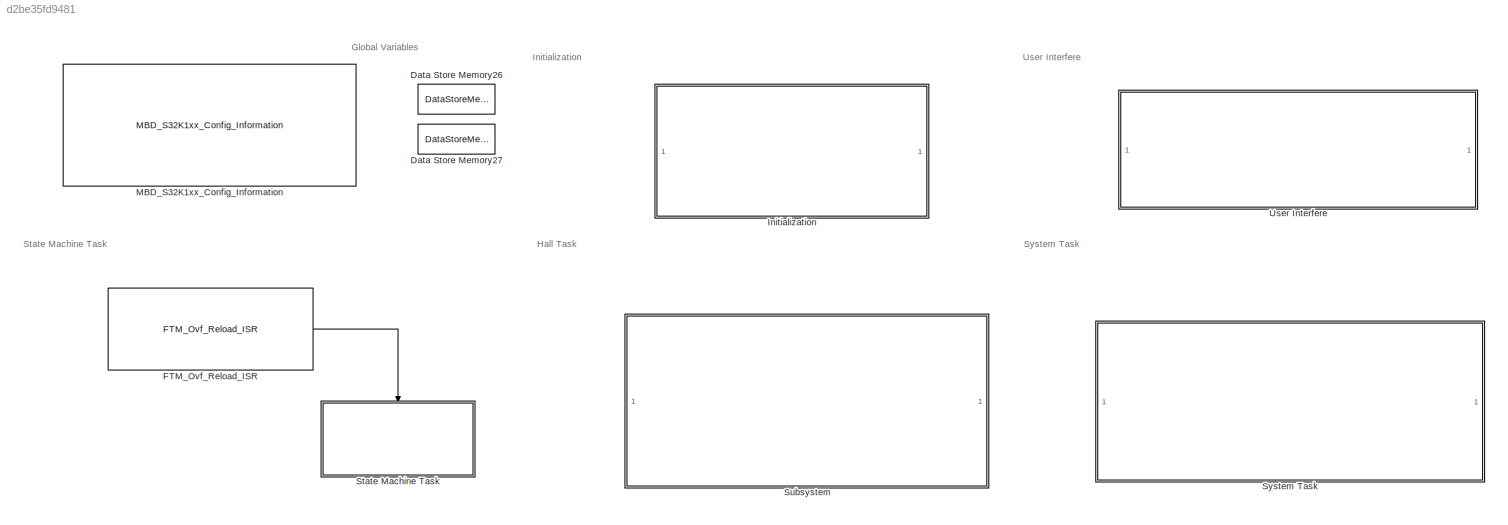
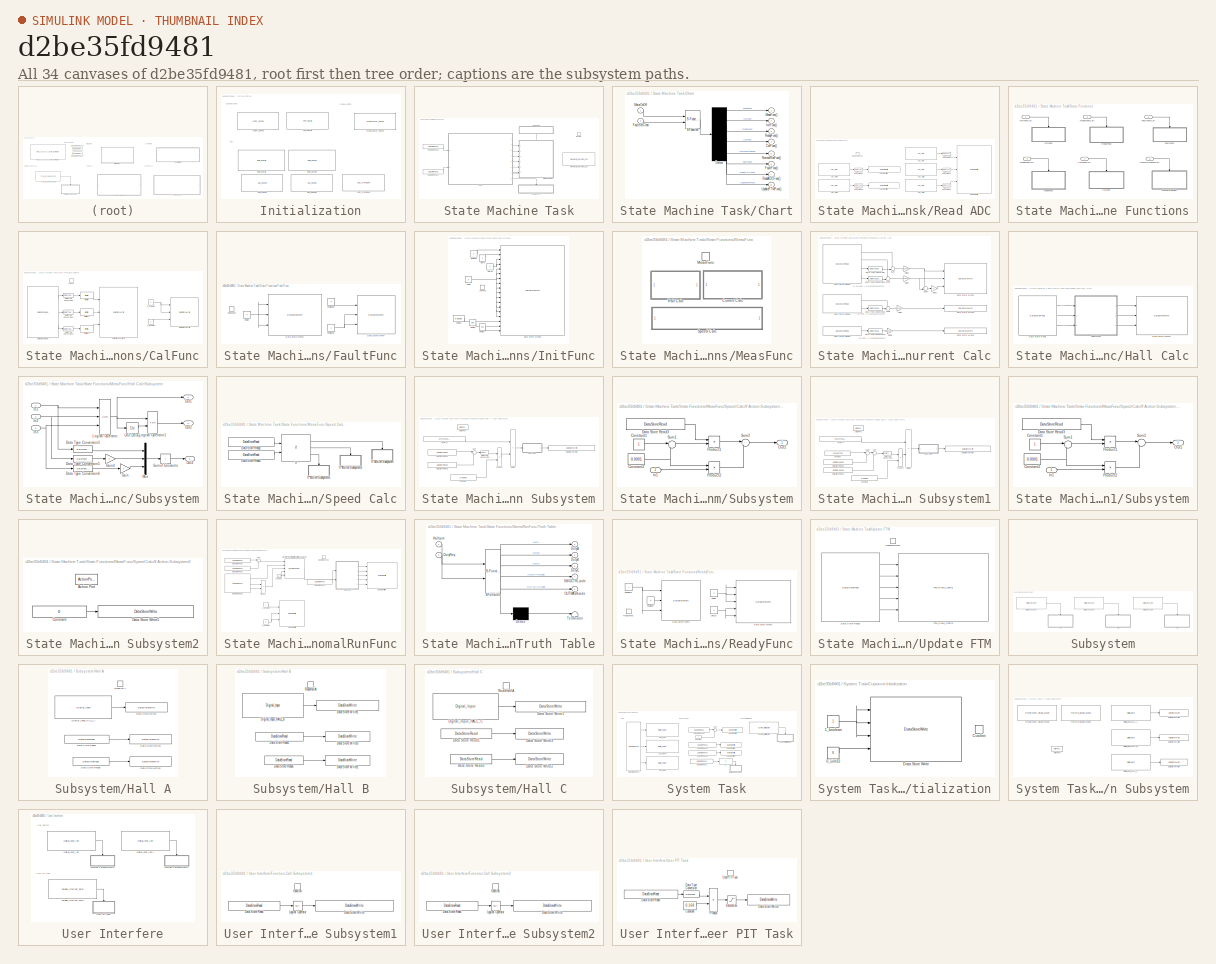
[diagram: thumbnail index - all 34 canvases of the model, root first then tree order]
MODEL slx_d2be35fd9481
KIND model
CONFIG AbsTol = auto
CONFIG EnableMultiTasking = off
CONFIG FixedStep = 0.0001
CONFIG InitFcn = mbd_s32k_consistency_checks(bdroot(gcs));
CONFIG MaxStep = auto
CONFIG MinStep = auto
CONFIG PreLoadFcn = load('struct_BLDC_Crtl.mat');
CONFIG RelTol = 1e-3
CONFIG SampleTimeConstraint = Unconstrained
CONFIG SolverName = FixedStepDiscrete
CONFIG StartTime = 0.0
CONFIG StopTime = 10.0
BLOCK [DataStoreMemory] Data Store Memory26
  DataStoreName = varBLDC
  OutDataTypeStr = Bus: structBLDC
  ReadBeforeWriteMsg = warning
  ShowAdditionalParam = off
  WriteAfterReadMsg = warning
  WriteAfterWriteMsg = warning
BLOCK [DataStoreMemory] Data Store Memory27
  DataStoreName = varPeripherals
  OutDataTypeStr = Bus: structPeripherals
  ReadBeforeWriteMsg = warning
  ShowAdditionalParam = off
  WriteAfterReadMsg = warning
  WriteAfterWriteMsg = warning
BLOCK [Reference] FTM_Ovf_Reload_ISR  REF=mbd_s32k1xx_ec_toolbox/Motor Control Blocks/FTM Blocks/FTM_Ovf_Reload_ISR
  Ports = [0, 1]
  Priority = 10
  SourceBlock = mbd_s32k1xx_ec_toolbox/Motor Control Blocks/FTM Blocks/FTM_Ovf_Reload_ISR
  SourceType = FTM_s32k_ovf_reload_isr
BLOCK [SubSystem] Initialization
  Ports = []
  RequestExecContextInheritance = off
BLOCK [Reference] Initialization/ADC_Config  REF=mbd_s32k1xx_ec_toolbox/Motor Control Blocks/ADC Blocks/ADC_Config
  Ports = []
  SourceBlock = mbd_s32k1xx_ec_toolbox/Motor Control Blocks/ADC Blocks/ADC_Config
  SourceType = adc_s32k_config_block
BLOCK [Reference] Initialization/ADC_Config1  REF=mbd_s32k1xx_ec_toolbox/Motor Control Blocks/ADC Blocks/ADC_Config
  Ports = []
  SourceBlock = mbd_s32k1xx_ec_toolbox/Motor Control Blocks/ADC Blocks/ADC_Config
  SourceType = adc_s32k_config_block
BLOCK [Reference] Initialization/ADC_Interleave  REF=mbd_s32k1xx_ec_toolbox/Motor Control Blocks/ADC Blocks/ADC_Interleave
  Ports = []
  SourceBlock = mbd_s32k1xx_ec_toolbox/Motor Control Blocks/ADC Blocks/ADC_Interleave
  SourceType = adc_s32k_interleave_block
BLOCK [Reference] Initialization/FreeMaster_Config  REF=mbd_s32k1xx_ec_toolbox/Utility Blocks/FreeMaster_Config
  Ports = []
  SourceBlock = mbd_s32k1xx_ec_toolbox/Utility Blocks/FreeMaster_Config
  SourceType = fm_s32k_config
BLOCK [Reference] Initialization/LPSPI_Config   REF=mbd_s32k1xx_ec_toolbox/Communication Blocks/SPI Blocks/LPSPI_Config

  Ports = []
  SourceBlock = mbd_s32k1xx_ec_toolbox/Communication Blocks/SPI Blocks/LPSPI_Config
  SourceType = lpspi_s32k_config
BLOCK [Reference] Initialization/PDB_Config  REF=mbd_s32k1xx_ec_toolbox/Motor Control Blocks/PDB Blocks/PDB_Config
  Ports = []
  SourceBlock = mbd_s32k1xx_ec_toolbox/Motor Control Blocks/PDB Blocks/PDB_Config
  SourceType = pdb_s32k_config_block
BLOCK [Reference] Initialization/PDB_Config1  REF=mbd_s32k1xx_ec_toolbox/Motor Control Blocks/PDB Blocks/PDB_Config
  Ports = []
  SourceBlock = mbd_s32k1xx_ec_toolbox/Motor Control Blocks/PDB Blocks/PDB_Config
  SourceType = pdb_s32k_config_block
BLOCK [Reference] Initialization/TPP_Config  REF=mbd_msd_ec_toolbox/TPP/TPP_Config
  Ports = []
  Priority = 1
  SourceBlock = mbd_msd_ec_toolbox/TPP/TPP_Config
  SourceType = tpp_s32k_config
BLOCK [Reference] MBD_S32K1xx_Config_Information  REF=mbd_s32k1xx_ec_toolbox/MBD_S32K1xx_Config_Information
  Ports = []
  SourceBlock = mbd_s32k1xx_ec_toolbox/MBD_S32K1xx_Config_Information
  SourceType = MBDTBX_EC_S32K
BLOCK [SubSystem] State Machine Task
  Ports = [0, 0, 0, 1]
  RequestExecContextInheritance = off
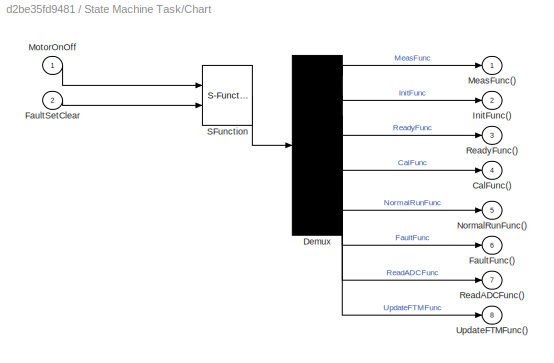
BLOCK [SubSystem] State Machine Task/Chart
  ErrorFcn = Stateflow.Translate.translate
  PermitHierarchicalResolution = ExplicitOnly
  PortSchema = {"entries":[{"content":{"sides":[{"content":{"connectorIds":["In1","In2"]},"type":"ConnectorPlacement.EquallySpacedRectSide","uuid":"6aab3670-dbd5-4778-9051-de706f320d6c"},{"content":{"connectorIds":["Out7","Out2","Out3","Out1","Out4","Out5","Out6","Out8"],"side":"RIGHT"},"type":"ConnectorPlacement.EquallySpacedRectSide","uuid":"2f9f0170-7a01-4f36-b182-da63b20b6c86"},{"content":{"connectorIds":[],...<+439ch>
  Ports = [2, 8]
  RequestExecContextInheritance = off
  SFBlockType = Chart
  TreatAsAtomicUnit = on
BLOCK [Demux] State Machine Task/Chart/ Demux 
  Outputs = 8
  Ports = [1, 8]
BLOCK [S-Function] State Machine Task/Chart/ SFunction 
  EnableBusSupport = on
  FunctionName = sf_sfun
  PortCounts = [2 1]
  Ports = [2, 1]
  SFcnIsStateOwnerBlock = off
  SFunctionDeploymentMode = off
  Tag = Stateflow S-Function 1
BLOCK [Outport] State Machine Task/Chart/CalFunc()
  Port = 4
BLOCK [Outport] State Machine Task/Chart/FaultFunc()
  Port = 6
BLOCK [Inport] State Machine Task/Chart/FaultSetClear
  Port = 2
BLOCK [Outport] State Machine Task/Chart/InitFunc()
  Port = 2
BLOCK [Outport] State Machine Task/Chart/MeasFunc()
BLOCK [Inport] State Machine Task/Chart/MotorOnOff
BLOCK [Outport] State Machine Task/Chart/NormalRunFunc()
  Port = 5
BLOCK [Outport] State Machine Task/Chart/ReadADCFunc()
  Port = 7
BLOCK [Outport] State Machine Task/Chart/ReadyFunc()
  Port = 3
BLOCK [Outport] State Machine Task/Chart/UpdateFTMFunc()
  Port = 8
BLOCK [DataStoreRead] State Machine Task/Data Store Read1
  DataStoreElements = varBLDC.varMotorCtrl.FaultSetClear
  DataStoreName = varBLDC
  Ports = [0, 1]
BLOCK [DataStoreRead] State Machine Task/Data Store Read3
  DataStoreElements = varBLDC.varMotorCtrl.MotorOnOff
  DataStoreName = varBLDC
  Ports = [0, 1]
BLOCK [Reference] State Machine Task/FreeMaster_Recorder_Call  REF=mbd_s32k1xx_ec_toolbox/Utility Blocks/FreeMaster_Recorder_Call
  Ports = []
  SourceBlock = mbd_s32k1xx_ec_toolbox/Utility Blocks/FreeMaster_Recorder_Call
  SourceType = fm_s32k_recorder_call
BLOCK [SubSystem] State Machine Task/Read ADC
  NameLocation = top
  Ports = [0, 0, 0, 1]
  RequestExecContextInheritance = off
BLOCK [Reference] State Machine Task/Read ADC/ADC_Start  REF=mbd_s32k1xx_ec_toolbox/Motor Control Blocks/ADC Blocks/ADC_Start
  Ports = [0, 1]
  SourceBlock = mbd_s32k1xx_ec_toolbox/Motor Control Blocks/ADC Blocks/ADC_Start
  SourceType = adc_s32k_start_block
BLOCK [Reference] State Machine Task/Read ADC/ADC_Start1  REF=mbd_s32k1xx_ec_toolbox/Motor Control Blocks/ADC Blocks/ADC_Start
  Ports = [0, 1]
  SourceBlock = mbd_s32k1xx_ec_toolbox/Motor Control Blocks/ADC Blocks/ADC_Start
  SourceType = adc_s32k_start_block
BLOCK [Reference] State Machine Task/Read ADC/ADC_Start2  REF=mbd_s32k1xx_ec_toolbox/Motor Control Blocks/ADC Blocks/ADC_Start
  Ports = [0, 1]
  SourceBlock = mbd_s32k1xx_ec_toolbox/Motor Control Blocks/ADC Blocks/ADC_Start
  SourceType = adc_s32k_start_block
BLOCK [Reference] State Machine Task/Read ADC/ADC_Start4  REF=mbd_s32k1xx_ec_toolbox/Motor Control Blocks/ADC Blocks/ADC_Start
  Ports = [0, 1]
  SourceBlock = mbd_s32k1xx_ec_toolbox/Motor Control Blocks/ADC Blocks/ADC_Start
  SourceType = adc_s32k_start_block
BLOCK [Reference] State Machine Task/Read ADC/ADC_Start5  REF=mbd_s32k1xx_ec_toolbox/Motor Control Blocks/ADC Blocks/ADC_Start
  Ports = [0, 1]
  SourceBlock = mbd_s32k1xx_ec_toolbox/Motor Control Blocks/ADC Blocks/ADC_Start
  SourceType = adc_s32k_start_block
BLOCK [DataStoreWrite] State Machine Task/Read ADC/Data Store Write
  DataStoreElements = varBLDC.varMeasRaw.iDCRaw#varBLDC.varMeasRaw.vDCRaw#varBLDC.varMeasRaw.iBRaw
  DataStoreName = varBLDC
  Ports = [3]
BLOCK [DataStoreWrite] State Machine Task/Read ADC/Data Store Write1
  DataStoreElements = varBLDC.varMeasRaw.PotRaw
  DataStoreName = varBLDC
  Ports = [1]
BLOCK [DataStoreWrite] State Machine Task/Read ADC/Data Store Write2
  DataStoreElements = varBLDC.varMeasRaw.iARaw
  DataStoreName = varBLDC
  Ports = [1]
BLOCK [DataTypeConversion] State Machine Task/Read ADC/Data Type Conversion
  OutDataTypeStr = uint16
  RndMeth = Floor
  SaturateOnIntegerOverflow = off
BLOCK [DataTypeConversion] State Machine Task/Read ADC/Data Type Conversion1
  OutDataTypeStr = uint16
  RndMeth = Floor
  SaturateOnIntegerOverflow = off
BLOCK [DataTypeConversion] State Machine Task/Read ADC/Data Type Conversion2
  OutDataTypeStr = uint16
  RndMeth = Floor
  SaturateOnIntegerOverflow = off
BLOCK [DataTypeConversion] State Machine Task/Read ADC/Data Type Conversion3
  OutDataTypeStr = uint16
  RndMeth = Floor
  SaturateOnIntegerOverflow = off
BLOCK [DataTypeConversion] State Machine Task/Read ADC/Data Type Conversion4
  OutDataTypeStr = uint16
  RndMeth = Floor
  SaturateOnIntegerOverflow = off
BLOCK [TriggerPort] State Machine Task/Read ADC/ReadADCFunc
  Ports = []
  StatesWhenEnabling = held
  TriggerType = function-call
  VariantControl = Variant
BLOCK [SubSystem] State Machine Task/State Functions
  Ports = [6]
  Priority = 1
  RequestExecContextInheritance = off
BLOCK [SubSystem] State Machine Task/State Functions/CalFunc
  Ports = [0, 0, 0, 1]
  RequestExecContextInheritance = off
  TreatAsAtomicUnit = on
BLOCK [Constant] State Machine Task/State Functions/CalFunc/0_boolean
  OutDataTypeStr = boolean
  Value = 0
BLOCK [Constant] State Machine Task/State Functions/CalFunc/1_boolean
  OutDataTypeStr = boolean
BLOCK [TriggerPort] State Machine Task/State Functions/CalFunc/CalFunc
  Ports = []
  StatesWhenEnabling = held
  TriggerType = function-call
  VariantControl = Variant
BLOCK [DataStoreRead] State Machine Task/State Functions/CalFunc/Data Store Read
  DataStoreElements = varBLDC.varMeasRaw.iARaw#varBLDC.varMeasRaw.iBRaw#varBLDC.varMeasRaw.iDCRaw
  DataStoreName = varBLDC
  Ports = [0, 3]
BLOCK [DataStoreWrite] State Machine Task/State Functions/CalFunc/Data Store Write
  DataStoreElements = varPeripherals.varLED.LEDR#varPeripherals.varLED.LEDG#varPeripherals.varLED.LEDB
  DataStoreName = varPeripherals
  Ports = [3]
BLOCK [DataStoreWrite] State Machine Task/State Functions/CalFunc/Data Store Write15
  DataStoreElements = varBLDC.varCurrentOffset.CurrentOffsetA#varBLDC.varCurrentOffset.CurrentOffsetB#varBLDC.varCurrentOffset.CurrentOffsetDC
  DataStoreName = varBLDC
  Ports = [3]
BLOCK [DataTypeConversion] State Machine Task/State Functions/CalFunc/Data Type Conversion
  OutDataTypeStr = single
  RndMeth = Floor
  SaturateOnIntegerOverflow = off
BLOCK [DataTypeConversion] State Machine Task/State Functions/CalFunc/Data Type Conversion1
  OutDataTypeStr = single
  RndMeth = Floor
  SaturateOnIntegerOverflow = off
BLOCK [DataTypeConversion] State Machine Task/State Functions/CalFunc/Data Type Conversion2
  OutDataTypeStr = single
  RndMeth = Floor
  SaturateOnIntegerOverflow = off
BLOCK [Reference] State Machine Task/State Functions/CalFunc/IIR Filter  REF=mcbcontrolslib/IIR Filter
  Ports = [1, 1]
  SourceBlock = mcbcontrolslib/IIR Filter
  SourceProductBaseCode = MT
  SourceType = IIR Filter
BLOCK [Reference] State Machine Task/State Functions/CalFunc/IIR Filter1  REF=mcbcontrolslib/IIR Filter
  Ports = [1, 1]
  SourceBlock = mcbcontrolslib/IIR Filter
  SourceProductBaseCode = MT
  SourceType = IIR Filter
BLOCK [Reference] State Machine Task/State Functions/CalFunc/IIR Filter2  REF=mcbcontrolslib/IIR Filter
  Ports = [1, 1]
  SourceBlock = mcbcontrolslib/IIR Filter
  SourceProductBaseCode = MT
  SourceType = IIR Filter
BLOCK [Inport] State Machine Task/State Functions/CalFuncCall
  Port = 4
BLOCK [SubSystem] State Machine Task/State Functions/FaultFunc
  Ports = [0, 0, 0, 1]
  RequestExecContextInheritance = off
  TreatAsAtomicUnit = on
BLOCK [DataStoreWrite] State Machine Task/State Functions/FaultFunc/Data Store Write
  DataStoreElements = varPeripherals.varLED.LEDR#varPeripherals.varLED.LEDG#varPeripherals.varLED.LEDB
  DataStoreName = varPeripherals
  Ports = [3]
BLOCK [DataStoreWrite] State Machine Task/State Functions/FaultFunc/Data Store Write1
  DataStoreElements = varBLDC.varDuty.DutyA#varBLDC.varDuty.DutyB#varBLDC.varDuty.DutyC
  DataStoreName = varBLDC
  Ports = [3]
BLOCK [TriggerPort] State Machine Task/State Functions/FaultFunc/FaultFunc
  Ports = []
  StatesWhenEnabling = held
  TriggerType = function-call
  VariantControl = Variant
BLOCK [Constant] State Machine Task/State Functions/FaultFunc/boolean0
  OutDataTypeStr = boolean
  Value = 0
BLOCK [Constant] State Machine Task/State Functions/FaultFunc/boolean1
  OutDataTypeStr = boolean
BLOCK [Constant] State Machine Task/State Functions/FaultFunc/single
  OutDataTypeStr = single
  Value = 0
BLOCK [Inport] State Machine Task/State Functions/FaultFuncCall
  Port = 6
BLOCK [SubSystem] State Machine Task/State Functions/InitFunc
  Ports = [0, 0, 0, 1]
  RequestExecContextInheritance = off
  TreatAsAtomicUnit = on
BLOCK [DataStoreWrite] State Machine Task/State Functions/InitFunc/Data Store Write5
  DataStoreElements = varBLDC.varHallCalc.HallXOR#varBLDC.varHallCalc.HallSum#varBLDC.varHallCalc.HallStart#varBLDC.varHallCalc.HallEnd#varBLDC.varHallCalc.HallSpd#varBLDC.varCurrent.CurrentA#varBLDC.varCurrent.CurrentB#varBLDC.varCurrent.CurrentC#varBLDC.varCurrent.CurrentDC#varBLDC.varCurrentOffset.CurrentOffsetA#varBLDC.varCurrentOffset.CurrentOffsetB#varBLDC.varCurrentOffset.CurrentOffsetDC#varBLDC.varDuty.DutyA#va...<+131ch>
  DataStoreName = varBLDC
  Ports = [18]
BLOCK [TriggerPort] State Machine Task/State Functions/InitFunc/InitFunc
  Ports = []
  StatesWhenEnabling = held
  TriggerType = function-call
  VariantControl = Variant
BLOCK [Constant] State Machine Task/State Functions/InitFunc/boolean
  OutDataTypeStr = boolean
  Value = 0
BLOCK [Constant] State Machine Task/State Functions/InitFunc/single
  OutDataTypeStr = single
  Value = 0
BLOCK [Constant] State Machine Task/State Functions/InitFunc/single1
  OutDataTypeStr = single
  Value = 0.00005
BLOCK [Constant] State Machine Task/State Functions/InitFunc/single2
  OutDataTypeStr = single
  Value = 0.08
BLOCK [Constant] State Machine Task/State Functions/InitFunc/single3
  OutDataTypeStr = single
  Value = 0.01
BLOCK [Constant] State Machine Task/State Functions/InitFunc/uint32
  OutDataTypeStr = uint32
  Value = 0
BLOCK [Constant] State Machine Task/State Functions/InitFunc/uint8
  OutDataTypeStr = uint8
  Value = 0
BLOCK [Inport] State Machine Task/State Functions/InitFuncCall
BLOCK [SubSystem] State Machine Task/State Functions/MeasFunc
  Ports = [0, 0, 0, 1]
  RequestExecContextInheritance = off
  TreatAsAtomicUnit = on
BLOCK [SubSystem] State Machine Task/State Functions/MeasFunc/Current Calc
  Ports = []
  Priority = 1
  RequestExecContextInheritance = off
BLOCK [DataStoreRead] State Machine Task/State Functions/MeasFunc/Current Calc/Data Store Read1
  DataStoreElements = varBLDC.varCurrentOffset.CurrentOffsetDC#varBLDC.varMeasRaw.iDCRaw
  DataStoreName = varBLDC
  Ports = [0, 2]
BLOCK [DataStoreRead] State Machine Task/State Functions/MeasFunc/Current Calc/Data Store Read2
  DataStoreElements = varBLDC.varCurrentOffset.CurrentOffsetA#varBLDC.varCurrentOffset.CurrentOffsetB#varBLDC.varMeasRaw.iARaw#varBLDC.varMeasRaw.iBRaw
  DataStoreName = varBLDC
  Ports = [0, 4]
BLOCK [DataStoreRead] State Machine Task/State Functions/MeasFunc/Current Calc/Data Store Read3
  DataStoreElements = varBLDC.varMeasRaw.vDCRaw
  DataStoreName = varBLDC
  Ports = [0, 1]
BLOCK [DataStoreWrite] State Machine Task/State Functions/MeasFunc/Current Calc/Data Store Write1
  DataStoreElements = varBLDC.varCurrent.CurrentA#varBLDC.varCurrent.CurrentB#varBLDC.varCurrent.CurrentC
  DataStoreName = varBLDC
  Ports = [3]
BLOCK [DataStoreWrite] State Machine Task/State Functions/MeasFunc/Current Calc/Data Store Write2
  DataStoreElements = varBLDC.varCurrent.CurrentDC
  DataStoreName = varBLDC
  Ports = [1]
BLOCK [DataStoreWrite] State Machine Task/State Functions/MeasFunc/Current Calc/Data Store Write3
  DataStoreElements = varBLDC.varVoltage.VoltageDC
  DataStoreName = varBLDC
  Ports = [1]
BLOCK [DataTypeConversion] State Machine Task/State Functions/MeasFunc/Current Calc/Data Type Conversion
  OutDataTypeStr = single
  RndMeth = Floor
  SaturateOnIntegerOverflow = off
BLOCK [DataTypeConversion] State Machine Task/State Functions/MeasFunc/Current Calc/Data Type Conversion1
  OutDataTypeStr = single
  RndMeth = Floor
  SaturateOnIntegerOverflow = off
BLOCK [DataTypeConversion] State Machine Task/State Functions/MeasFunc/Current Calc/Data Type Conversion2
  OutDataTypeStr = single
  RndMeth = Floor
  SaturateOnIntegerOverflow = off
BLOCK [DataTypeConversion] State Machine Task/State Functions/MeasFunc/Current Calc/Data Type Conversion4
  OutDataTypeStr = single
  RndMeth = Floor
  SaturateOnIntegerOverflow = off
BLOCK [Gain] State Machine Task/State Functions/MeasFunc/Current Calc/Gain1
  Gain = 0.0122100122100122
  OutDataTypeStr = single
BLOCK [Gain] State Machine Task/State Functions/MeasFunc/Current Calc/Gain2
  Gain = 0.0152625152625153
  OutDataTypeStr = single
BLOCK [Gain] State Machine Task/State Functions/MeasFunc/Current Calc/Gain3
  Gain = 0.0152625152625153
  OutDataTypeStr = single
BLOCK [Gain] State Machine Task/State Functions/MeasFunc/Current Calc/Gain6
  Gain = -1
  OutDataTypeStr = single
BLOCK [Gain] State Machine Task/State Functions/MeasFunc/Current Calc/Gain8
  Gain = 0.010989010989011
  OutDataTypeStr = single
BLOCK [Sum] State Machine Task/State Functions/MeasFunc/Current Calc/Sum
  Inputs = +-|
  Ports = [2, 1]
BLOCK [Sum] State Machine Task/State Functions/MeasFunc/Current Calc/Sum1
  Inputs = +-|
  Ports = [2, 1]
BLOCK [Sum] State Machine Task/State Functions/MeasFunc/Current Calc/Sum2
  Inputs = ++|
  Ports = [2, 1]
BLOCK [Sum] State Machine Task/State Functions/MeasFunc/Current Calc/Sum3
  Inputs = -+|
  Ports = [2, 1]
BLOCK [SubSystem] State Machine Task/State Functions/MeasFunc/Hall Calc
  Ports = []
  Priority = 2
  RequestExecContextInheritance = off
BLOCK [DataStoreRead] State Machine Task/State Functions/MeasFunc/Hall Calc/Data Store Read
  DataStoreElements = varBLDC.varHall.HallA#varBLDC.varHall.HallB#varBLDC.varHall.HallC
  DataStoreName = varBLDC
  Ports = [0, 3]
BLOCK [DataStoreWrite] State Machine Task/State Functions/MeasFunc/Hall Calc/Data Store Write5
  DataStoreElements = varBLDC.varHallCalc.HallXOR#varBLDC.varHallCalc.HallEdgeEvent#varBLDC.varHallCalc.HallSum
  DataStoreName = varBLDC
  Ports = [3]
BLOCK [SubSystem] State Machine Task/State Functions/MeasFunc/Hall Calc/Subsystem
  Ports = [3, 3]
  RequestExecContextInheritance = off
BLOCK [DataTypeConversion] State Machine Task/State Functions/MeasFunc/Hall Calc/Subsystem/Data Type Conversion3
  OutDataTypeStr = uint8
  RndMeth = Floor
  SaturateOnIntegerOverflow = off
BLOCK [DataTypeConversion] State Machine Task/State Functions/MeasFunc/Hall Calc/Subsystem/Data Type Conversion5
  OutDataTypeStr = uint8
  RndMeth = Floor
  SaturateOnIntegerOverflow = off
BLOCK [DataTypeConversion] State Machine Task/State Functions/MeasFunc/Hall Calc/Subsystem/Data Type Conversion6
  OutDataTypeStr = uint8
  RndMeth = Floor
  SaturateOnIntegerOverflow = off
BLOCK [Gain] State Machine Task/State Functions/MeasFunc/Hall Calc/Subsystem/Gain
  Gain = 4
  OutDataTypeStr = uint8
BLOCK [Gain] State Machine Task/State Functions/MeasFunc/Hall Calc/Subsystem/Gain4
  Gain = 2
  OutDataTypeStr = uint8
BLOCK [Inport] State Machine Task/State Functions/MeasFunc/Hall Calc/Subsystem/In1
BLOCK [Inport] State Machine Task/State Functions/MeasFunc/Hall Calc/Subsystem/In2
  Port = 2
BLOCK [Inport] State Machine Task/State Functions/MeasFunc/Hall Calc/Subsystem/In3
  Port = 3
BLOCK [Logic] State Machine Task/State Functions/MeasFunc/Hall Calc/Subsystem/Logical Operator
  AllPortsSameDT = off
  Inputs = 3
  Operator = XOR
  OutDataTypeStr = boolean
  Ports = [3, 1]
BLOCK [Logic] State Machine Task/State Functions/MeasFunc/Hall Calc/Subsystem/Logical Operator1
  AllPortsSameDT = off
  Operator = XOR
  OutDataTypeStr = boolean
  Ports = [2, 1]
BLOCK [Mux] State Machine Task/State Functions/MeasFunc/Hall Calc/Subsystem/Mux
  DisplayOption = bar
  Inputs = 3
  Ports = [3, 1]
BLOCK [Outport] State Machine Task/State Functions/MeasFunc/Hall Calc/Subsystem/Out1
BLOCK [Outport] State Machine Task/State Functions/MeasFunc/Hall Calc/Subsystem/Out2
  Port = 2
BLOCK [Outport] State Machine Task/State Functions/MeasFunc/Hall Calc/Subsystem/Out3
  Port = 3
BLOCK [Sum] State Machine Task/State Functions/MeasFunc/Hall Calc/Subsystem/Sum of Elements
  IconShape = rectangular
  Inputs = +
  Ports = [1, 1]
BLOCK [UnitDelay] State Machine Task/State Functions/MeasFunc/Hall Calc/Subsystem/Unit Delay
  HasFrameUpgradeWarning = on
  SampleTime = -1
BLOCK [TriggerPort] State Machine Task/State Functions/MeasFunc/MeasFunc
  Ports = []
  StatesWhenEnabling = held
  TriggerType = function-call
  VariantControl = Variant
BLOCK [SubSystem] State Machine Task/State Functions/MeasFunc/Speed Calc
  Ports = []
  RequestExecContextInheritance = off
BLOCK [DataStoreRead] State Machine Task/State Functions/MeasFunc/Speed Calc/Data Store Read1
  DataStoreElements = varBLDC.varHallCalc.HallEnd
  DataStoreName = varBLDC
  Ports = [0, 1]
BLOCK [DataStoreRead] State Machine Task/State Functions/MeasFunc/Speed Calc/Data Store Read2
  DataStoreElements = varBLDC.varHallCalc.HallStart
  DataStoreName = varBLDC
  Ports = [0, 1]
BLOCK [If] State Machine Task/State Functions/MeasFunc/Speed Calc/If
  ElseIfExpressions = u1 == u2
  IfExpression = u1 < u2
  NumInputs = 2
  Ports = [2, 3]
BLOCK [SubSystem] State Machine Task/State Functions/MeasFunc/Speed Calc/If Action Subsystem
  Ports = [0, 0, 0, 0, 0, 0, 0, 1]
  RequestExecContextInheritance = off
  TreatAsAtomicUnit = on
BLOCK [ActionPort] State Machine Task/State Functions/MeasFunc/Speed Calc/If Action Subsystem/Action Port
  ActionPortLabel = if(u1 < u2)
BLOCK [Constant] State Machine Task/State Functions/MeasFunc/Speed Calc/If Action Subsystem/Constant
  OutDataTypeStr = single
  Value = 0.00005
BLOCK [DataStoreRead] State Machine Task/State Functions/MeasFunc/Speed Calc/If Action Subsystem/Data Store Read1
  DataStoreElements = varBLDC.varHallCalc.HallEnd
  DataStoreName = varBLDC
  Ports = [0, 1]
BLOCK [DataStoreRead] State Machine Task/State Functions/MeasFunc/Speed Calc/If Action Subsystem/Data Store Read2
  DataStoreElements = varBLDC.varHallCalc.HallStart
  DataStoreName = varBLDC
  Ports = [0, 1]
BLOCK [DataStoreWrite] State Machine Task/State Functions/MeasFunc/Speed Calc/If Action Subsystem/Data Store Write5
  DataStoreElements = varBLDC.varHallCalc.HallSpd
  DataStoreName = varBLDC
  Ports = [1]
BLOCK [DataTypeConversion] State Machine Task/State Functions/MeasFunc/Speed Calc/If Action Subsystem/Data Type Conversion
  OutDataTypeStr = single
  RndMeth = Floor
  SaturateOnIntegerOverflow = off
BLOCK [Product] State Machine Task/State Functions/MeasFunc/Speed Calc/If Action Subsystem/Divide
  Inputs = */
  Ports = [2, 1]
BLOCK [Product] State Machine Task/State Functions/MeasFunc/Speed Calc/If Action Subsystem/Product
  Ports = [2, 1]
BLOCK [SubSystem] State Machine Task/State Functions/MeasFunc/Speed Calc/If Action Subsystem/Subsystem
  Ports = [1, 1]
  RequestExecContextInheritance = off
BLOCK [Constant] State Machine Task/State Functions/MeasFunc/Speed Calc/If Action Subsystem/Subsystem/Constant1
  OutDataTypeStr = single
BLOCK [Constant] State Machine Task/State Functions/MeasFunc/Speed Calc/If Action Subsystem/Subsystem/Constant2
  OutDataTypeStr = single
  Value = 0.0001
BLOCK [DataStoreRead] State Machine Task/State Functions/MeasFunc/Speed Calc/If Action Subsystem/Subsystem/Data Store Read3
  DataStoreElements = varBLDC.varHallCalc.HallSpd
  DataStoreName = varBLDC
  Ports = [0, 1]
BLOCK [Inport] State Machine Task/State Functions/MeasFunc/Speed Calc/If Action Subsystem/Subsystem/In1
BLOCK [Outport] State Machine Task/State Functions/MeasFunc/Speed Calc/If Action Subsystem/Subsystem/Out1
BLOCK [Product] State Machine Task/State Functions/MeasFunc/Speed Calc/If Action Subsystem/Subsystem/Product1
  Ports = [2, 1]
BLOCK [Product] State Machine Task/State Functions/MeasFunc/Speed Calc/If Action Subsystem/Subsystem/Product2
  Ports = [2, 1]
BLOCK [Sum] State Machine Task/State Functions/MeasFunc/Speed Calc/If Action Subsystem/Subsystem/Sum1
  Inputs = |+-
  Ports = [2, 1]
BLOCK [Sum] State Machine Task/State Functions/MeasFunc/Speed Calc/If Action Subsystem/Subsystem/Sum2
  Inputs = |++
  Ports = [2, 1]
BLOCK [Sum] State Machine Task/State Functions/MeasFunc/Speed Calc/If Action Subsystem/Sum
  Inputs = |+-
  Ports = [2, 1]
BLOCK [Constant] State Machine Task/State Functions/MeasFunc/Speed Calc/If Action Subsystem/pi_div_3
  OutDataTypeStr = single
  Value = 1.0471975511965977461542144610932
BLOCK [SubSystem] State Machine Task/State Functions/MeasFunc/Speed Calc/If Action Subsystem1
  Ports = [0, 0, 0, 0, 0, 0, 0, 1]
  RequestExecContextInheritance = off
  TreatAsAtomicUnit = on
BLOCK [ActionPort] State Machine Task/State Functions/MeasFunc/Speed Calc/If Action Subsystem1/Action Port
  ActionPortLabel = else
BLOCK [Constant] State Machine Task/State Functions/MeasFunc/Speed Calc/If Action Subsystem1/Constant
  OutDataTypeStr = uint32
  Value = 4294967295
BLOCK [Constant] State Machine Task/State Functions/MeasFunc/Speed Calc/If Action Subsystem1/Constant1
  OutDataTypeStr = single
  Value = 0.00005
BLOCK [DataStoreRead] State Machine Task/State Functions/MeasFunc/Speed Calc/If Action Subsystem1/Data Store Read1
  DataStoreElements = varBLDC.varHallCalc.HallEnd
  DataStoreName = varBLDC
  Ports = [0, 1]
BLOCK [DataStoreRead] State Machine Task/State Functions/MeasFunc/Speed Calc/If Action Subsystem1/Data Store Read2
  DataStoreElements = varBLDC.varHallCalc.HallStart
  DataStoreName = varBLDC
  Ports = [0, 1]
BLOCK [DataStoreWrite] State Machine Task/State Functions/MeasFunc/Speed Calc/If Action Subsystem1/Data Store Write5
  DataStoreElements = varBLDC.varHallCalc.HallSpd
  DataStoreName = varBLDC
  Ports = [1]
BLOCK [DataTypeConversion] State Machine Task/State Functions/MeasFunc/Speed Calc/If Action Subsystem1/Data Type Conversion
  OutDataTypeStr = single
  RndMeth = Floor
  SaturateOnIntegerOverflow = off
BLOCK [Product] State Machine Task/State Functions/MeasFunc/Speed Calc/If Action Subsystem1/Divide
  Inputs = */
  Ports = [2, 1]
BLOCK [Product] State Machine Task/State Functions/MeasFunc/Speed Calc/If Action Subsystem1/Product
  Ports = [2, 1]
BLOCK [SubSystem] State Machine Task/State Functions/MeasFunc/Speed Calc/If Action Subsystem1/Subsystem
  Ports = [1, 1]
  RequestExecContextInheritance = off
BLOCK [Constant] State Machine Task/State Functions/MeasFunc/Speed Calc/If Action Subsystem1/Subsystem/Constant1
  OutDataTypeStr = single
BLOCK [Constant] State Machine Task/State Functions/MeasFunc/Speed Calc/If Action Subsystem1/Subsystem/Constant2
  OutDataTypeStr = single
  Value = 0.0001
BLOCK [DataStoreRead] State Machine Task/State Functions/MeasFunc/Speed Calc/If Action Subsystem1/Subsystem/Data Store Read3
  DataStoreElements = varBLDC.varHallCalc.HallSpd
  DataStoreName = varBLDC
  Ports = [0, 1]
BLOCK [Inport] State Machine Task/State Functions/MeasFunc/Speed Calc/If Action Subsystem1/Subsystem/In1
BLOCK [Outport] State Machine Task/State Functions/MeasFunc/Speed Calc/If Action Subsystem1/Subsystem/Out1
BLOCK [Product] State Machine Task/State Functions/MeasFunc/Speed Calc/If Action Subsystem1/Subsystem/Product1
  Ports = [2, 1]
BLOCK [Product] State Machine Task/State Functions/MeasFunc/Speed Calc/If Action Subsystem1/Subsystem/Product2
  Ports = [2, 1]
BLOCK [Sum] State Machine Task/State Functions/MeasFunc/Speed Calc/If Action Subsystem1/Subsystem/Sum1
  Inputs = |+-
  Ports = [2, 1]
BLOCK [Sum] State Machine Task/State Functions/MeasFunc/Speed Calc/If Action Subsystem1/Subsystem/Sum2
  Inputs = |++
  Ports = [2, 1]
BLOCK [Sum] State Machine Task/State Functions/MeasFunc/Speed Calc/If Action Subsystem1/Sum
  Inputs = |++
  Ports = [2, 1]
BLOCK [Sum] State Machine Task/State Functions/MeasFunc/Speed Calc/If Action Subsystem1/Sum1
  Inputs = |+-
  Ports = [2, 1]
BLOCK [Constant] State Machine Task/State Functions/MeasFunc/Speed Calc/If Action Subsystem1/pi_div_3
  OutDataTypeStr = single
  Value = 1.0471975511965977461542144610932
BLOCK [SubSystem] State Machine Task/State Functions/MeasFunc/Speed Calc/If Action Subsystem2
  Ports = [0, 0, 0, 0, 0, 0, 0, 1]
  RequestExecContextInheritance = off
  TreatAsAtomicUnit = on
BLOCK [ActionPort] State Machine Task/State Functions/MeasFunc/Speed Calc/If Action Subsystem2/Action Port
  ActionPortLabel = elseif(u1 == u2)
BLOCK [Constant] State Machine Task/State Functions/MeasFunc/Speed Calc/If Action Subsystem2/Constant
  OutDataTypeStr = single
  Value = 0
BLOCK [DataStoreWrite] State Machine Task/State Functions/MeasFunc/Speed Calc/If Action Subsystem2/Data Store Write5
  DataStoreElements = varBLDC.varHallCalc.HallSpd
  DataStoreName = varBLDC
  Ports = [1]
BLOCK [Inport] State Machine Task/State Functions/MeasFuncCall
  Port = 3
BLOCK [SubSystem] State Machine Task/State Functions/NomalRunFunc
  Ports = [0, 0, 0, 1]
  RequestExecContextInheritance = off
  TreatAsAtomicUnit = on
BLOCK [Constant] State Machine Task/State Functions/NomalRunFunc/0_boolean
  OutDataTypeStr = boolean
  Value = 0
BLOCK [Constant] State Machine Task/State Functions/NomalRunFunc/1_boolean
  OutDataTypeStr = boolean
BLOCK [Constant] State Machine Task/State Functions/NomalRunFunc/Constant
  OutDataTypeStr = single
  Value = 0
BLOCK [DataStoreRead] State Machine Task/State Functions/NomalRunFunc/Data Store Read1
  DataStoreElements = varBLDC.varHallCalc.HallSpd
  DataStoreName = varBLDC
  Ports = [0, 1]
BLOCK [DataStoreRead] State Machine Task/State Functions/NomalRunFunc/Data Store Read2
  DataStoreElements = varBLDC.varMotorCtrl.SpdPI.Kp#varBLDC.varMotorCtrl.SpdPI.Ki#varBLDC.varMotorCtrl.SpdPI.Ts
  DataStoreName = varBLDC
  Ports = [0, 3]
BLOCK [DataStoreRead] State Machine Task/State Functions/NomalRunFunc/Data Store Read3
  DataStoreElements = varBLDC.varHallCalc.HallSum
  DataStoreName = varBLDC
  Ports = [0, 1]
BLOCK [DataStoreRead] State Machine Task/State Functions/NomalRunFunc/Data Store Read4
  DataStoreElements = varBLDC.varMotorCtrl.SpdReq
  DataStoreName = varBLDC
  Ports = [0, 1]
BLOCK [DataStoreWrite] State Machine Task/State Functions/NomalRunFunc/Data Store Write
  DataStoreElements = varPeripherals.varLED.LEDR#varPeripherals.varLED.LEDG#varPeripherals.varLED.LEDB
  DataStoreName = varPeripherals
  Ports = [3]
BLOCK [DataStoreWrite] State Machine Task/State Functions/NomalRunFunc/Data Store Write1
  DataStoreElements = varBLDC.varDuty.DutyA#varBLDC.varDuty.DutyB#varBLDC.varDuty.DutyC#varBLDC.varDuty.SWOCTRLcode#varBLDC.varDuty.OUTMASKcode
  DataStoreName = varBLDC
  Ports = [5]
BLOCK [Reference] State Machine Task/State Functions/NomalRunFunc/Discrete PI Controller with anti-windup & reset  REF=mcbcontrolslib/Discrete PI Controller 
with anti-windup & reset
  Ports = [5, 1]
  SourceBlock = mcbcontrolslib/Discrete PI Controller \nwith anti-windup & reset
  SourceProductBaseCode = MT
  SourceType = Discrete PI Controller with anti-windup and reset
BLOCK [TriggerPort] State Machine Task/State Functions/NomalRunFunc/NomalRunFunc
  Ports = []
  StatesWhenEnabling = held
  TriggerType = function-call
  VariantControl = Variant
BLOCK [Product] State Machine Task/State Functions/NomalRunFunc/Product
  Ports = [2, 1]
BLOCK [Sum] State Machine Task/State Functions/NomalRunFunc/Sum
  Inputs = |+-
  Ports = [2, 1]
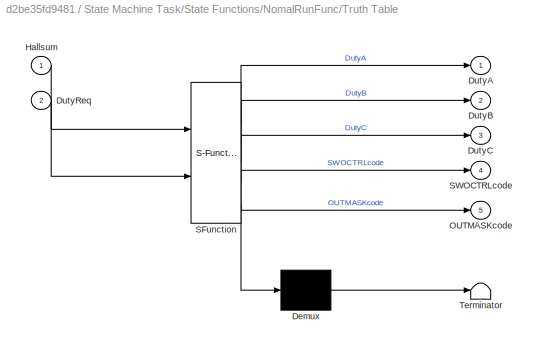
BLOCK [SubSystem] State Machine Task/State Functions/NomalRunFunc/Truth Table
  ErrorFcn = Stateflow.Translate.translate
  PermitHierarchicalResolution = ExplicitOnly
  PortSchema = {"entries":[{"content":{"sides":[{"content":{"connectorIds":["In2","In1"]},"type":"ConnectorPlacement.EquallySpacedRectSide","uuid":"59c0d94d-4ab6-4082-9c20-9efdae7878b3"},{"content":{"connectorIds":["Out1","Out2","Out3","Out4","Out5"],"side":"RIGHT"},"type":"ConnectorPlacement.EquallySpacedRectSide","uuid":"fbebaf7f-5920-4df9-84a7-9b0467c91c72"},{"content":{"connectorIds":[],"side":"TOP"},"type":...<+418ch>
  Ports = [2, 5]
  RequestExecContextInheritance = off
  SFBlockType = Truth Table
  TreatAsAtomicUnit = on
BLOCK [Demux] State Machine Task/State Functions/NomalRunFunc/Truth Table/ Demux 
  Outputs = 1
  Ports = [1, 1]
BLOCK [S-Function] State Machine Task/State Functions/NomalRunFunc/Truth Table/ SFunction 
  EnableBusSupport = on
  FunctionName = sf_sfun
  PortCounts = [2 6]
  Ports = [2, 6]
  SFcnIsStateOwnerBlock = off
  SFunctionDeploymentMode = off
  Tag = Stateflow S-Function 11
BLOCK [Terminator] State Machine Task/State Functions/NomalRunFunc/Truth Table/ Terminator 
BLOCK [Outport] State Machine Task/State Functions/NomalRunFunc/Truth Table/DutyA
  VectorParamsAs1DForOutWhenUnconnected = off
BLOCK [Outport] State Machine Task/State Functions/NomalRunFunc/Truth Table/DutyB
  Port = 2
BLOCK [Outport] State Machine Task/State Functions/NomalRunFunc/Truth Table/DutyC
  Port = 3
BLOCK [Inport] State Machine Task/State Functions/NomalRunFunc/Truth Table/DutyReq
  Port = 2
BLOCK [Inport] State Machine Task/State Functions/NomalRunFunc/Truth Table/Hallsum
BLOCK [Outport] State Machine Task/State Functions/NomalRunFunc/Truth Table/OUTMASKcode
  Port = 5
BLOCK [Outport] State Machine Task/State Functions/NomalRunFunc/Truth Table/SWOCTRLcode
  Port = 4
BLOCK [Inport] State Machine Task/State Functions/NomalRunFuncCall
  Port = 5
BLOCK [SubSystem] State Machine Task/State Functions/ReadyFunc
  Ports = [0, 0, 0, 1]
  RequestExecContextInheritance = off
  TreatAsAtomicUnit = on
BLOCK [DataStoreWrite] State Machine Task/State Functions/ReadyFunc/Data Store Write
  DataStoreElements = varPeripherals.varLED.LEDR#varPeripherals.varLED.LEDG#varPeripherals.varLED.LEDB
  DataStoreName = varPeripherals
  Ports = [3]
BLOCK [DataStoreWrite] State Machine Task/State Functions/ReadyFunc/Data Store Write1
  DataStoreElements = varBLDC.varDuty.DutyA#varBLDC.varDuty.DutyB#varBLDC.varDuty.DutyC#varBLDC.varHallCalc.HallStart#varBLDC.varHallCalc.HallEnd
  DataStoreName = varBLDC
  Ports = [5]
BLOCK [TriggerPort] State Machine Task/State Functions/ReadyFunc/ReadyFunc
  Ports = []
  StatesWhenEnabling = held
  TriggerType = function-call
  VariantControl = Variant
BLOCK [Constant] State Machine Task/State Functions/ReadyFunc/boolean
  OutDataTypeStr = boolean
  Value = 0
BLOCK [Constant] State Machine Task/State Functions/ReadyFunc/boolean1
  OutDataTypeStr = boolean
BLOCK [Constant] State Machine Task/State Functions/ReadyFunc/single
  OutDataTypeStr = single
  Value = 0
BLOCK [Constant] State Machine Task/State Functions/ReadyFunc/uint32
  OutDataTypeStr = uint32
  Value = 0
BLOCK [Inport] State Machine Task/State Functions/ReadyFuncCall
  Port = 2
BLOCK [SubSystem] State Machine Task/Update FTM
  Ports = [0, 0, 0, 1]
  RequestExecContextInheritance = off
BLOCK [DataStoreRead] State Machine Task/Update FTM/Data Store Read2
  DataStoreElements = varBLDC.varDuty.DutyA#varBLDC.varDuty.DutyB#varBLDC.varDuty.DutyC#varBLDC.varDuty.SWOCTRLcode#varBLDC.varDuty.OUTMASKcode
  DataStoreName = varBLDC
  Ports = [0, 5]
BLOCK [Reference] State Machine Task/Update FTM/FTM_PWM_Config  REF=mbd_s32k1xx_ec_toolbox/Motor Control Blocks/FTM Blocks/FTM_PWM_Config
  Ports = [5]
  Priority = 5
  SourceBlock = mbd_s32k1xx_ec_toolbox/Motor Control Blocks/FTM Blocks/FTM_PWM_Config
  SourceType = FTM_s32k_pwm_config_block
BLOCK [TriggerPort] State Machine Task/Update FTM/UpdateFTMFunc
  Ports = []
  StatesWhenEnabling = held
  TriggerType = function-call
  VariantControl = Variant
BLOCK [TriggerPort] State Machine Task/function
  Ports = []
  StatesWhenEnabling = held
  TriggerType = function-call
  VariantControl = Variant
BLOCK [SubSystem] Subsystem
  Ports = []
  RequestExecContextInheritance = off
BLOCK [Reference] Subsystem/Digital_Input_ISR  REF=mbd_s32k1xx_ec_toolbox/GPIO Blocks/Digital_Input_ISR
  Ports = [0, 1]
  SourceBlock = mbd_s32k1xx_ec_toolbox/GPIO Blocks/Digital_Input_ISR
  SourceType = gpi_s32k_isr
BLOCK [Reference] Subsystem/Digital_Input_ISR1  REF=mbd_s32k1xx_ec_toolbox/GPIO Blocks/Digital_Input_ISR
  Ports = [0, 1]
  SourceBlock = mbd_s32k1xx_ec_toolbox/GPIO Blocks/Digital_Input_ISR
  SourceType = gpi_s32k_isr
BLOCK [Reference] Subsystem/Digital_Input_ISR2  REF=mbd_s32k1xx_ec_toolbox/GPIO Blocks/Digital_Input_ISR
  Ports = [0, 1]
  SourceBlock = mbd_s32k1xx_ec_toolbox/GPIO Blocks/Digital_Input_ISR
  SourceType = gpi_s32k_isr
BLOCK [SubSystem] Subsystem/Hall A
  Ports = [0, 0, 0, 1]
  RequestExecContextInheritance = off
  TreatAsAtomicUnit = on
BLOCK [DataStoreRead] Subsystem/Hall A/Data Store Read1
  DataStoreElements = varBLDC.varHallCalc.HallEnd
  DataStoreName = varBLDC
  Ports = [0, 1]
BLOCK [DataStoreRead] Subsystem/Hall A/Data Store Read5
  DataStoreElements = varPeripherals.basicTimer
  DataStoreName = varPeripherals
  Ports = [0, 1]
BLOCK [DataStoreWrite] Subsystem/Hall A/Data Store Write1
  DataStoreElements = varBLDC.varHall.HallA
  DataStoreName = varBLDC
  Ports = [1]
BLOCK [DataStoreWrite] Subsystem/Hall A/Data Store Write2
  DataStoreElements = varBLDC.varHallCalc.HallEnd
  DataStoreName = varBLDC
  Ports = [1]
BLOCK [DataStoreWrite] Subsystem/Hall A/Data Store Write3
  DataStoreElements = varBLDC.varHallCalc.HallStart
  DataStoreName = varBLDC
  Ports = [1]
BLOCK [Reference] Subsystem/Hall A/Digital_Input_HALL_A  REF=mbd_s32k1xx_ec_toolbox/GPIO Blocks/Digital_Input
  Ports = [0, 1]
  SourceBlock = mbd_s32k1xx_ec_toolbox/GPIO Blocks/Digital_Input
  SourceType = gpio_s32k_input
BLOCK [TriggerPort] Subsystem/Hall A/ReadHallA
  Ports = []
  StatesWhenEnabling = held
  TriggerType = function-call
  VariantControl = Variant
BLOCK [SubSystem] Subsystem/Hall B
  Ports = [0, 0, 0, 1]
  RequestExecContextInheritance = off
  TreatAsAtomicUnit = on
BLOCK [DataStoreRead] Subsystem/Hall B/Data Store Read1
  DataStoreElements = varBLDC.varHallCalc.HallEnd
  DataStoreName = varBLDC
  Ports = [0, 1]
BLOCK [DataStoreRead] Subsystem/Hall B/Data Store Read5
  DataStoreElements = varPeripherals.basicTimer
  DataStoreName = varPeripherals
  Ports = [0, 1]
BLOCK [DataStoreWrite] Subsystem/Hall B/Data Store Write1
  DataStoreElements = varBLDC.varHall.HallB
  DataStoreName = varBLDC
  Ports = [1]
BLOCK [DataStoreWrite] Subsystem/Hall B/Data Store Write2
  DataStoreElements = varBLDC.varHallCalc.HallEnd
  DataStoreName = varBLDC
  Ports = [1]
BLOCK [DataStoreWrite] Subsystem/Hall B/Data Store Write3
  DataStoreElements = varBLDC.varHallCalc.HallStart
  DataStoreName = varBLDC
  Ports = [1]
BLOCK [Reference] Subsystem/Hall B/Digital_Input_HALL_B  REF=mbd_s32k1xx_ec_toolbox/GPIO Blocks/Digital_Input
  Ports = [0, 1]
  SourceBlock = mbd_s32k1xx_ec_toolbox/GPIO Blocks/Digital_Input
  SourceType = gpio_s32k_input
BLOCK [TriggerPort] Subsystem/Hall B/ReadHallA
  Ports = []
  StatesWhenEnabling = held
  TriggerType = function-call
  VariantControl = Variant
BLOCK [SubSystem] Subsystem/Hall C
  Ports = [0, 0, 0, 1]
  RequestExecContextInheritance = off
  TreatAsAtomicUnit = on
BLOCK [DataStoreRead] Subsystem/Hall C/Data Store Read1
  DataStoreElements = varBLDC.varHallCalc.HallEnd
  DataStoreName = varBLDC
  Ports = [0, 1]
BLOCK [DataStoreRead] Subsystem/Hall C/Data Store Read5
  DataStoreElements = varPeripherals.basicTimer
  DataStoreName = varPeripherals
  Ports = [0, 1]
BLOCK [DataStoreWrite] Subsystem/Hall C/Data Store Write1
  DataStoreElements = varBLDC.varHall.HallC
  DataStoreName = varBLDC
  Ports = [1]
BLOCK [DataStoreWrite] Subsystem/Hall C/Data Store Write2
  DataStoreElements = varBLDC.varHallCalc.HallEnd
  DataStoreName = varBLDC
  Ports = [1]
BLOCK [DataStoreWrite] Subsystem/Hall C/Data Store Write3
  DataStoreElements = varBLDC.varHallCalc.HallStart
  DataStoreName = varBLDC
  Ports = [1]
BLOCK [Reference] Subsystem/Hall C/Digital_Input_HALL_C  REF=mbd_s32k1xx_ec_toolbox/GPIO Blocks/Digital_Input
  Ports = [0, 1]
  SourceBlock = mbd_s32k1xx_ec_toolbox/GPIO Blocks/Digital_Input
  SourceType = gpio_s32k_input
BLOCK [TriggerPort] Subsystem/Hall C/ReadHallA
  Ports = []
  StatesWhenEnabling = held
  TriggerType = function-call
  VariantControl = Variant
BLOCK [SubSystem] System Task
  Ports = []
  RequestExecContextInheritance = off
BLOCK [Constant] System Task/Constant
  OutDataTypeStr = uint32
BLOCK [Reference] System Task/Custom_Initialization  REF=mbd_s32k1xx_ec_toolbox/Utility Blocks/Custom_Initialization
  Ports = [0, 1]
  SourceBlock = mbd_s32k1xx_ec_toolbox/Utility Blocks/Custom_Initialization
  SourceType = custom_init_s32k_trigger_block
BLOCK [SubSystem] System Task/Customer Initialization
  Ports = [0, 0, 0, 1]
  RequestExecContextInheritance = off
  TreatAsAtomicUnit = on
BLOCK [Constant] System Task/Customer Initialization/0_uint32
  OutDataTypeStr = uint32
  Value = 0
BLOCK [Constant] System Task/Customer Initialization/1_boolean
  OutDataTypeStr = boolean
BLOCK [TriggerPort] System Task/Customer Initialization/CustInit
  Ports = []
  StatesWhenEnabling = held
  TriggerType = function-call
  VariantControl = Variant
BLOCK [DataStoreWrite] System Task/Customer Initialization/Data Store Write
  DataStoreElements = varPeripherals.varLED.LEDR#varPeripherals.varLED.LEDG#varPeripherals.varLED.LEDB#varPeripherals.basicTimer
  DataStoreName = varPeripherals
  Ports = [4]
BLOCK [DataStoreRead] System Task/Data Store Read
  DataStoreElements = varPeripherals.basicTimer
  DataStoreName = varPeripherals
  Ports = [0, 1]
BLOCK [DataStoreRead] System Task/Data Store Read1
  DataStoreElements = varPeripherals.varButton.Button1
  DataStoreName = varPeripherals
  Ports = [0, 1]
BLOCK [DataStoreRead] System Task/Data Store Read2
  DataStoreElements = varPeripherals.varButton.Button2
  DataStoreName = varPeripherals
  Ports = [0, 1]
BLOCK [DataStoreRead] System Task/Data Store Read3
  DataStoreElements = varPeripherals.basicTimer
  DataStoreName = varPeripherals
  Ports = [0, 1]
BLOCK [DataStoreRead] System Task/Data Store Read4
  DataStoreElements = varPeripherals.varLED.LEDR#varPeripherals.varLED.LEDG#varPeripherals.varLED.LEDB
  DataStoreName = varPeripherals
  Ports = [0, 3]
BLOCK [DataStoreWrite] System Task/Data Store Write
  DataStoreElements = varPeripherals.basicTimer
  DataStoreName = varPeripherals
  Ports = [1]
BLOCK [DataStoreWrite] System Task/Data Store Write1
  DataStoreElements = varBLDC.varMotorCtrl.MotorOnOff
  DataStoreName = varBLDC
  Ports = [1]
BLOCK [DataStoreWrite] System Task/Data Store Write2
  DataStoreElements = varBLDC.varMotorCtrl.FaultSetClear
  DataStoreName = varBLDC
  Ports = [1]
BLOCK [If] System Task/If
  IfExpression = u1 == 20000
  Ports = [1, 1]
  ShowElse = off
BLOCK [SubSystem] System Task/If Action Subsystem
  Ports = [0, 0, 0, 0, 0, 0, 0, 1]
  RequestExecContextInheritance = off
  TreatAsAtomicUnit = on
BLOCK [ActionPort] System Task/If Action Subsystem/Action Port
  ActionPortLabel = if(u1 == 20000)
BLOCK [DataStoreWrite] System Task/If Action Subsystem/Data Store Write2
  DataStoreElements = varBLDC.varHall.HallA
  DataStoreName = varBLDC
  Ports = [1]
BLOCK [DataStoreWrite] System Task/If Action Subsystem/Data Store Write3
  DataStoreElements = varBLDC.varHall.HallB
  DataStoreName = varBLDC
  Ports = [1]
BLOCK [DataStoreWrite] System Task/If Action Subsystem/Data Store Write4
  DataStoreElements = varBLDC.varHall.HallC
  DataStoreName = varBLDC
  Ports = [1]
BLOCK [Reference] System Task/If Action Subsystem/Digital_Input_HALL_A  REF=mbd_s32k1xx_ec_toolbox/GPIO Blocks/Digital_Input
  Ports = [0, 1]
  SourceBlock = mbd_s32k1xx_ec_toolbox/GPIO Blocks/Digital_Input
  SourceType = gpio_s32k_input
BLOCK [Reference] System Task/If Action Subsystem/Digital_Input_HALL_B  REF=mbd_s32k1xx_ec_toolbox/GPIO Blocks/Digital_Input
  Ports = [0, 1]
  SourceBlock = mbd_s32k1xx_ec_toolbox/GPIO Blocks/Digital_Input
  SourceType = gpio_s32k_input
BLOCK [Reference] System Task/If Action Subsystem/Digital_Input_HALL_C  REF=mbd_s32k1xx_ec_toolbox/GPIO Blocks/Digital_Input
  Ports = [0, 1]
  SourceBlock = mbd_s32k1xx_ec_toolbox/GPIO Blocks/Digital_Input
  SourceType = gpio_s32k_input
BLOCK [Reference] System Task/If Action Subsystem/FTM_Init_Trigger_Disable_Enable  REF=mbd_s32k1xx_ec_toolbox/Motor Control Blocks/FTM Blocks/FTM_Init_Trigger_Disable_Enable
  Ports = []
  SourceBlock = mbd_s32k1xx_ec_toolbox/Motor Control Blocks/FTM Blocks/FTM_Init_Trigger_Disable_Enable
  SourceType = FTM_s32k_init_disen
BLOCK [Reference] System Task/If Action Subsystem/FTM_PWM_Disable_Enable  REF=mbd_s32k1xx_ec_toolbox/Motor Control Blocks/FTM Blocks/FTM_PWM_Disable_Enable
  Ports = []
  SourceBlock = mbd_s32k1xx_ec_toolbox/Motor Control Blocks/FTM Blocks/FTM_PWM_Disable_Enable
  SourceType = FTM_s32k_pwm_disen
BLOCK [Reference] System Task/LED_Blue  REF=mbd_s32k1xx_ec_toolbox/GPIO Blocks/Digital_Output
  Ports = [1]
  SourceBlock = mbd_s32k1xx_ec_toolbox/GPIO Blocks/Digital_Output
  SourceType = gpio_s32k_output
BLOCK [Reference] System Task/LED_Green  REF=mbd_s32k1xx_ec_toolbox/GPIO Blocks/Digital_Output
  Ports = [1]
  SourceBlock = mbd_s32k1xx_ec_toolbox/GPIO Blocks/Digital_Output
  SourceType = gpio_s32k_output
BLOCK [Reference] System Task/LED_Red  REF=mbd_s32k1xx_ec_toolbox/GPIO Blocks/Digital_Output
  Ports = [1]
  SourceBlock = mbd_s32k1xx_ec_toolbox/GPIO Blocks/Digital_Output
  SourceType = gpio_s32k_output
BLOCK [Sum] System Task/Sum
  Inputs = |++
  Ports = [2, 1]
BLOCK [SubSystem] User Interfere
  Ports = []
  RequestExecContextInheritance = off
BLOCK [Reference] User Interfere/Digital_Input_ISR  REF=mbd_s32k1xx_ec_toolbox/GPIO Blocks/Digital_Input_ISR
  Ports = [0, 1]
  SourceBlock = mbd_s32k1xx_ec_toolbox/GPIO Blocks/Digital_Input_ISR
  SourceType = gpi_s32k_isr
BLOCK [Reference] User Interfere/Digital_Input_ISR1  REF=mbd_s32k1xx_ec_toolbox/GPIO Blocks/Digital_Input_ISR
  Ports = [0, 1]
  SourceBlock = mbd_s32k1xx_ec_toolbox/GPIO Blocks/Digital_Input_ISR
  SourceType = gpi_s32k_isr
BLOCK [SubSystem] User Interfere/Function-Call Subsystem1
  Ports = [0, 0, 0, 1]
  RequestExecContextInheritance = off
  TreatAsAtomicUnit = on
BLOCK [DataStoreRead] User Interfere/Function-Call Subsystem1/Data Store Read
  DataStoreElements = varPeripherals.varButton.Button2
  DataStoreName = varPeripherals
  Ports = [0, 1]
BLOCK [DataStoreWrite] User Interfere/Function-Call Subsystem1/Data Store Write
  DataStoreElements = varPeripherals.varButton.Button2
  DataStoreName = varPeripherals
  Ports = [1]
BLOCK [Logic] User Interfere/Function-Call Subsystem1/Logical Operator
  AllPortsSameDT = off
  Operator = NOT
  OutDataTypeStr = boolean
  Ports = [1, 1]
BLOCK [TriggerPort] User Interfere/Function-Call Subsystem1/function
  Ports = []
  StatesWhenEnabling = held
  TriggerType = function-call
  VariantControl = Variant
BLOCK [SubSystem] User Interfere/Function-Call Subsystem2
  Ports = [0, 0, 0, 1]
  RequestExecContextInheritance = off
  TreatAsAtomicUnit = on
BLOCK [DataStoreRead] User Interfere/Function-Call Subsystem2/Data Store Read
  DataStoreElements = varPeripherals.varButton.Button1
  DataStoreName = varPeripherals
  Ports = [0, 1]
BLOCK [DataStoreWrite] User Interfere/Function-Call Subsystem2/Data Store Write
  DataStoreElements = varPeripherals.varButton.Button1
  DataStoreName = varPeripherals
  Ports = [1]
BLOCK [Logic] User Interfere/Function-Call Subsystem2/Logical Operator
  AllPortsSameDT = off
  Operator = NOT
  OutDataTypeStr = boolean
  Ports = [1, 1]
BLOCK [TriggerPort] User Interfere/Function-Call Subsystem2/function
  Ports = []
  StatesWhenEnabling = held
  TriggerType = function-call
  VariantControl = Variant
BLOCK [Reference] User Interfere/Periodic_Interrupt_Timer  REF=mbd_s32k1xx_ec_toolbox/Utility Blocks/Periodic_Interrupt_Timer
  Ports = [0, 1]
  SourceBlock = mbd_s32k1xx_ec_toolbox/Utility Blocks/Periodic_Interrupt_Timer
  SourceType = timer_s32k_lpit
BLOCK [SubSystem] User Interfere/User PIT Task
  Ports = [0, 0, 0, 1]
  RequestExecContextInheritance = off
  TreatAsAtomicUnit = on
BLOCK [Constant] User Interfere/User PIT Task/Constant
  OutDataTypeStr = single
  Value = 0.168
BLOCK [DataStoreRead] User Interfere/User PIT Task/Data Store Read
  DataStoreElements = varBLDC.varMeasRaw.PotRaw
  DataStoreName = varBLDC
  Ports = [0, 1]
BLOCK [DataStoreWrite] User Interfere/User PIT Task/Data Store Write1
  DataStoreElements = varBLDC.varMotorCtrl.SpdReq
  DataStoreName = varBLDC
  Ports = [1]
BLOCK [DataTypeConversion] User Interfere/User PIT Task/Data Type Conversion
  OutDataTypeStr = single
  RndMeth = Floor
  SaturateOnIntegerOverflow = off
BLOCK [Product] User Interfere/User PIT Task/Product
  Ports = [2, 1]
BLOCK [Saturate] User Interfere/User PIT Task/Saturation
  LowerLimit = 0
  UpperLimit = 650
BLOCK [TriggerPort] User Interfere/User PIT Task/UserPITFunc
  Ports = []
  StatesWhenEnabling = held
  TriggerType = function-call
  VariantControl = Variant
ANNOTATION (root): Global Variables
ANNOTATION (root): Hall Task
ANNOTATION (root): Initialization
ANNOTATION (root): State Machine Task
ANNOTATION (root): System Task
ANNOTATION (root): User Interfere
ANNOTATION Initialization: ADC
ANNOTATION Initialization: Configuration
ANNOTATION Initialization: FreeMASTER
ANNOTATION State Machine Task/State Functions/MeasFunc/Current Calc: 25/4095 = 0.0122100122100122
ANNOTATION State Machine Task/State Functions/MeasFunc/Current Calc: 31.25/4095 = 0.0152625152625153
ANNOTATION State Machine Task/State Functions/MeasFunc/Current Calc: 45/4095 = 0.010989010989011
ANNOTATION System Task: Basic Counter
ANNOTATION System Task: Customer Initialization
ANNOTATION System Task: LED
ANNOTATION User Interfere: User Button
ANNOTATION User Interfere: User PIT Task
LINE FTM_Ovf_Reload_ISR:1 -> State Machine Task:trigger
LINE State Machine Task/Chart:1 -> State Machine Task/State Functions:3
LINE State Machine Task/Chart:2 -> State Machine Task/State Functions:1
LINE State Machine Task/Chart:3 -> State Machine Task/State Functions:2
LINE State Machine Task/Chart:4 -> State Machine Task/State Functions:4
LINE State Machine Task/Chart:5 -> State Machine Task/State Functions:5
LINE State Machine Task/Chart:6 -> State Machine Task/State Functions:6
LINE State Machine Task/Chart:7 -> State Machine Task/Read ADC:trigger
LINE State Machine Task/Chart:8 -> State Machine Task/Update FTM:trigger
LINE State Machine Task/Data Store Read1:1 -> State Machine Task/Chart:2
LINE State Machine Task/Data Store Read3:1 -> State Machine Task/Chart:1
LINE State Machine Task/Read ADC/ADC_Start1:1 -> State Machine Task/Read ADC/Data Type Conversion2:1
LINE State Machine Task/Read ADC/ADC_Start2:1 -> State Machine Task/Read ADC/Data Type Conversion1:1
LINE State Machine Task/Read ADC/ADC_Start4:1 -> State Machine Task/Read ADC/Data Type Conversion4:1
LINE State Machine Task/Read ADC/ADC_Start5:1 -> State Machine Task/Read ADC/Data Type Conversion3:1
LINE State Machine Task/Read ADC/ADC_Start:1 -> State Machine Task/Read ADC/Data Type Conversion:1
LINE State Machine Task/Read ADC/Data Type Conversion1:1 -> State Machine Task/Read ADC/Data Store Write:2
LINE State Machine Task/Read ADC/Data Type Conversion2:1 -> State Machine Task/Read ADC/Data Store Write:3
LINE State Machine Task/Read ADC/Data Type Conversion3:1 -> State Machine Task/Read ADC/Data Store Write2:1
LINE State Machine Task/Read ADC/Data Type Conversion4:1 -> State Machine Task/Read ADC/Data Store Write1:1
LINE State Machine Task/Read ADC/Data Type Conversion:1 -> State Machine Task/Read ADC/Data Store Write:1
NET State Machine Task/State Functions/CalFunc/0_boolean:1 -> State Machine Task/State Functions/CalFunc/Data Store Write:1, State Machine Task/State Functions/CalFunc/Data Store Write:2
LINE State Machine Task/State Functions/CalFunc/1_boolean:1 -> State Machine Task/State Functions/CalFunc/Data Store Write:3
LINE State Machine Task/State Functions/CalFunc/Data Store Read:1 -> State Machine Task/State Functions/CalFunc/Data Type Conversion:1
LINE State Machine Task/State Functions/CalFunc/Data Store Read:2 -> State Machine Task/State Functions/CalFunc/Data Type Conversion1:1
LINE State Machine Task/State Functions/CalFunc/Data Store Read:3 -> State Machine Task/State Functions/CalFunc/Data Type Conversion2:1
LINE State Machine Task/State Functions/CalFunc/Data Type Conversion1:1 -> State Machine Task/State Functions/CalFunc/IIR Filter1:1
LINE State Machine Task/State Functions/CalFunc/Data Type Conversion2:1 -> State Machine Task/State Functions/CalFunc/IIR Filter2:1
LINE State Machine Task/State Functions/CalFunc/Data Type Conversion:1 -> State Machine Task/State Functions/CalFunc/IIR Filter:1
LINE State Machine Task/State Functions/CalFunc/IIR Filter1:1 -> State Machine Task/State Functions/CalFunc/Data Store Write15:2
LINE State Machine Task/State Functions/CalFunc/IIR Filter2:1 -> State Machine Task/State Functions/CalFunc/Data Store Write15:3
LINE State Machine Task/State Functions/CalFunc/IIR Filter:1 -> State Machine Task/State Functions/CalFunc/Data Store Write15:1
LINE State Machine Task/State Functions/CalFuncCall:1 -> State Machine Task/State Functions/CalFunc:trigger
LINE State Machine Task/State Functions/FaultFunc/boolean0:1 -> State Machine Task/State Functions/FaultFunc/Data Store Write:1
NET State Machine Task/State Functions/FaultFunc/boolean1:1 -> State Machine Task/State Functions/FaultFunc/Data Store Write:2, State Machine Task/State Functions/FaultFunc/Data Store Write:3
NET State Machine Task/State Functions/FaultFunc/single:1 -> State Machine Task/State Functions/FaultFunc/Data Store Write1:1, State Machine Task/State Functions/FaultFunc/Data Store Write1:2, State Machine Task/State Functions/FaultFunc/Data Store Write1:3
LINE State Machine Task/State Functions/FaultFuncCall:1 -> State Machine Task/State Functions/FaultFunc:trigger
LINE State Machine Task/State Functions/InitFunc/boolean:1 -> State Machine Task/State Functions/InitFunc/Data Store Write5:1
LINE State Machine Task/State Functions/InitFunc/single1:1 -> State Machine Task/State Functions/InitFunc/Data Store Write5:16
LINE State Machine Task/State Functions/InitFunc/single2:1 -> State Machine Task/State Functions/InitFunc/Data Store Write5:17
LINE State Machine Task/State Functions/InitFunc/single3:1 -> State Machine Task/State Functions/InitFunc/Data Store Write5:18
NET State Machine Task/State Functions/InitFunc/single:1 -> State Machine Task/State Functions/InitFunc/Data Store Write5:10, State Machine Task/State Functions/InitFunc/Data Store Write5:11, State Machine Task/State Functions/InitFunc/Data Store Write5:12, State Machine Task/State Functions/InitFunc/Data Store Write5:13, State Machine Task/State Functions/InitFunc/Data Store Write5:14, State Machine Task/State Functions/InitFunc/Data Store Write5:15, State Machine Task/State Functions/InitFunc/Data Store Write5:5, State Machine Task/State Functions/InitFunc/Data Store Write5:6, State Machine Task/State Functions/InitFunc/Data Store Write5:7, State Machine Task/State Functions/InitFunc/Data Store Write5:8, State Machine Task/State Functions/InitFunc/Data Store Write5:9
NET State Machine Task/State Functions/InitFunc/uint32:1 -> State Machine Task/State Functions/InitFunc/Data Store Write5:3, State Machine Task/State Functions/InitFunc/Data Store Write5:4
LINE State Machine Task/State Functions/InitFunc/uint8:1 -> State Machine Task/State Functions/InitFunc/Data Store Write5:2
LINE State Machine Task/State Functions/InitFuncCall:1 -> State Machine Task/State Functions/InitFunc:trigger
LINE State Machine Task/State Functions/MeasFunc/Current Calc/Data Store Read1:1 -> State Machine Task/State Functions/MeasFunc/Current Calc/Sum3:1
LINE State Machine Task/State Functions/MeasFunc/Current Calc/Data Store Read1:2 -> State Machine Task/State Functions/MeasFunc/Current Calc/Data Type Conversion1:1
LINE State Machine Task/State Functions/MeasFunc/Current Calc/Data Store Read2:1 -> State Machine Task/State Functions/MeasFunc/Current Calc/Sum:1
LINE State Machine Task/State Functions/MeasFunc/Current Calc/Data Store Read2:2 -> State Machine Task/State Functions/MeasFunc/Current Calc/Sum1:1
LINE State Machine Task/State Functions/MeasFunc/Current Calc/Data Store Read2:3 -> State Machine Task/State Functions/MeasFunc/Current Calc/Data Type Conversion:1
LINE State Machine Task/State Functions/MeasFunc/Current Calc/Data Store Read2:4 -> State Machine Task/State Functions/MeasFunc/Current Calc/Data Type Conversion4:1
LINE State Machine Task/State Functions/MeasFunc/Current Calc/Data Store Read3:1 -> State Machine Task/State Functions/MeasFunc/Current Calc/Data Type Conversion2:1
LINE State Machine Task/State Functions/MeasFunc/Current Calc/Data Type Conversion1:1 -> State Machine Task/State Functions/MeasFunc/Current Calc/Sum3:2
LINE State Machine Task/State Functions/MeasFunc/Current Calc/Data Type Conversion2:1 -> State Machine Task/State Functions/MeasFunc/Current Calc/Gain8:1
LINE State Machine Task/State Functions/MeasFunc/Current Calc/Data Type Conversion4:1 -> State Machine Task/State Functions/MeasFunc/Current Calc/Sum1:2
LINE State Machine Task/State Functions/MeasFunc/Current Calc/Data Type Conversion:1 -> State Machine Task/State Functions/MeasFunc/Current Calc/Sum:2
LINE State Machine Task/State Functions/MeasFunc/Current Calc/Gain1:1 -> State Machine Task/State Functions/MeasFunc/Current Calc/Data Store Write2:1
NET State Machine Task/State Functions/MeasFunc/Current Calc/Gain2:1 -> State Machine Task/State Functions/MeasFunc/Current Calc/Data Store Write1:2, State Machine Task/State Functions/MeasFunc/Current Calc/Sum2:2
NET State Machine Task/State Functions/MeasFunc/Current Calc/Gain3:1 -> State Machine Task/State Functions/MeasFunc/Current Calc/Data Store Write1:1, State Machine Task/State Functions/MeasFunc/Current Calc/Sum2:1
LINE State Machine Task/State Functions/MeasFunc/Current Calc/Gain6:1 -> State Machine Task/State Functions/MeasFunc/Current Calc/Data Store Write1:3
LINE State Machine Task/State Functions/MeasFunc/Current Calc/Gain8:1 -> State Machine Task/State Functions/MeasFunc/Current Calc/Data Store Write3:1
LINE State Machine Task/State Functions/MeasFunc/Current Calc/Sum1:1 -> State Machine Task/State Functions/MeasFunc/Current Calc/Gain2:1
LINE State Machine Task/State Functions/MeasFunc/Current Calc/Sum2:1 -> State Machine Task/State Functions/MeasFunc/Current Calc/Gain6:1
LINE State Machine Task/State Functions/MeasFunc/Current Calc/Sum3:1 -> State Machine Task/State Functions/MeasFunc/Current Calc/Gain1:1
LINE State Machine Task/State Functions/MeasFunc/Current Calc/Sum:1 -> State Machine Task/State Functions/MeasFunc/Current Calc/Gain3:1
LINE State Machine Task/State Functions/MeasFunc/Hall Calc/Data Store Read:1 -> State Machine Task/State Functions/MeasFunc/Hall Calc/Subsystem:1
LINE State Machine Task/State Functions/MeasFunc/Hall Calc/Data Store Read:2 -> State Machine Task/State Functions/MeasFunc/Hall Calc/Subsystem:2
LINE State Machine Task/State Functions/MeasFunc/Hall Calc/Data Store Read:3 -> State Machine Task/State Functions/MeasFunc/Hall Calc/Subsystem:3
LINE State Machine Task/State Functions/MeasFunc/Hall Calc/Subsystem/Data Type Conversion3:1 -> State Machine Task/State Functions/MeasFunc/Hall Calc/Subsystem/Mux:1
LINE State Machine Task/State Functions/MeasFunc/Hall Calc/Subsystem/Data Type Conversion5:1 -> State Machine Task/State Functions/MeasFunc/Hall Calc/Subsystem/Gain4:1
LINE State Machine Task/State Functions/MeasFunc/Hall Calc/Subsystem/Data Type Conversion6:1 -> State Machine Task/State Functions/MeasFunc/Hall Calc/Subsystem/Gain:1
LINE State Machine Task/State Functions/MeasFunc/Hall Calc/Subsystem/Gain4:1 -> State Machine Task/State Functions/MeasFunc/Hall Calc/Subsystem/Mux:2
LINE State Machine Task/State Functions/MeasFunc/Hall Calc/Subsystem/Gain:1 -> State Machine Task/State Functions/MeasFunc/Hall Calc/Subsystem/Mux:3
NET State Machine Task/State Functions/MeasFunc/Hall Calc/Subsystem/In1:1 -> State Machine Task/State Functions/MeasFunc/Hall Calc/Subsystem/Data Type Conversion3:1, State Machine Task/State Functions/MeasFunc/Hall Calc/Subsystem/Logical Operator:1
NET State Machine Task/State Functions/MeasFunc/Hall Calc/Subsystem/In2:1 -> State Machine Task/State Functions/MeasFunc/Hall Calc/Subsystem/Data Type Conversion5:1, State Machine Task/State Functions/MeasFunc/Hall Calc/Subsystem/Logical Operator:2
NET State Machine Task/State Functions/MeasFunc/Hall Calc/Subsystem/In3:1 -> State Machine Task/State Functions/MeasFunc/Hall Calc/Subsystem/Data Type Conversion6:1, State Machine Task/State Functions/MeasFunc/Hall Calc/Subsystem/Logical Operator:3
LINE State Machine Task/State Functions/MeasFunc/Hall Calc/Subsystem/Logical Operator1:1 -> State Machine Task/State Functions/MeasFunc/Hall Calc/Subsystem/Out2:1
NET State Machine Task/State Functions/MeasFunc/Hall Calc/Subsystem/Logical Operator:1 -> State Machine Task/State Functions/MeasFunc/Hall Calc/Subsystem/Logical Operator1:1, State Machine Task/State Functions/MeasFunc/Hall Calc/Subsystem/Out1:1, State Machine Task/State Functions/MeasFunc/Hall Calc/Subsystem/Unit Delay:1
LINE State Machine Task/State Functions/MeasFunc/Hall Calc/Subsystem/Mux:1 -> State Machine Task/State Functions/MeasFunc/Hall Calc/Subsystem/Sum of Elements:1
LINE State Machine Task/State Functions/MeasFunc/Hall Calc/Subsystem/Sum of Elements:1 -> State Machine Task/State Functions/MeasFunc/Hall Calc/Subsystem/Out3:1
LINE State Machine Task/State Functions/MeasFunc/Hall Calc/Subsystem/Unit Delay:1 -> State Machine Task/State Functions/MeasFunc/Hall Calc/Subsystem/Logical Operator1:2
LINE State Machine Task/State Functions/MeasFunc/Hall Calc/Subsystem:1 -> State Machine Task/State Functions/MeasFunc/Hall Calc/Data Store Write5:1
LINE State Machine Task/State Functions/MeasFunc/Hall Calc/Subsystem:2 -> State Machine Task/State Functions/MeasFunc/Hall Calc/Data Store Write5:2
LINE State Machine Task/State Functions/MeasFunc/Hall Calc/Subsystem:3 -> State Machine Task/State Functions/MeasFunc/Hall Calc/Data Store Write5:3
LINE State Machine Task/State Functions/MeasFunc/Speed Calc/Data Store Read1:1 -> State Machine Task/State Functions/MeasFunc/Speed Calc/If:2
LINE State Machine Task/State Functions/MeasFunc/Speed Calc/Data Store Read2:1 -> State Machine Task/State Functions/MeasFunc/Speed Calc/If:1
LINE State Machine Task/State Functions/MeasFunc/Speed Calc/If Action Subsystem/Constant:1 -> State Machine Task/State Functions/MeasFunc/Speed Calc/If Action Subsystem/Product:2
LINE State Machine Task/State Functions/MeasFunc/Speed Calc/If Action Subsystem/Data Store Read1:1 -> State Machine Task/State Functions/MeasFunc/Speed Calc/If Action Subsystem/Sum:1
LINE State Machine Task/State Functions/MeasFunc/Speed Calc/If Action Subsystem/Data Store Read2:1 -> State Machine Task/State Functions/MeasFunc/Speed Calc/If Action Subsystem/Sum:2
LINE State Machine Task/State Functions/MeasFunc/Speed Calc/If Action Subsystem/Data Type Conversion:1 -> State Machine Task/State Functions/MeasFunc/Speed Calc/If Action Subsystem/Product:1
LINE State Machine Task/State Functions/MeasFunc/Speed Calc/If Action Subsystem/Divide:1 -> State Machine Task/State Functions/MeasFunc/Speed Calc/If Action Subsystem/Subsystem:1
LINE State Machine Task/State Functions/MeasFunc/Speed Calc/If Action Subsystem/Product:1 -> State Machine Task/State Functions/MeasFunc/Speed Calc/If Action Subsystem/Divide:2
LINE State Machine Task/State Functions/MeasFunc/Speed Calc/If Action Subsystem/Subsystem/Constant1:1 -> State Machine Task/State Functions/MeasFunc/Speed Calc/If Action Subsystem/Subsystem/Sum1:1
NET State Machine Task/State Functions/MeasFunc/Speed Calc/If Action Subsystem/Subsystem/Constant2:1 -> State Machine Task/State Functions/MeasFunc/Speed Calc/If Action Subsystem/Subsystem/Product2:1, State Machine Task/State Functions/MeasFunc/Speed Calc/If Action Subsystem/Subsystem/Sum1:2
LINE State Machine Task/State Functions/MeasFunc/Speed Calc/If Action Subsystem/Subsystem/Data Store Read3:1 -> State Machine Task/State Functions/MeasFunc/Speed Calc/If Action Subsystem/Subsystem/Product1:1
LINE State Machine Task/State Functions/MeasFunc/Speed Calc/If Action Subsystem/Subsystem/In1:1 -> State Machine Task/State Functions/MeasFunc/Speed Calc/If Action Subsystem/Subsystem/Product2:2
LINE State Machine Task/State Functions/MeasFunc/Speed Calc/If Action Subsystem/Subsystem/Product1:1 -> State Machine Task/State Functions/MeasFunc/Speed Calc/If Action Subsystem/Subsystem/Sum2:1
LINE State Machine Task/State Functions/MeasFunc/Speed Calc/If Action Subsystem/Subsystem/Product2:1 -> State Machine Task/State Functions/MeasFunc/Speed Calc/If Action Subsystem/Subsystem/Sum2:2
LINE State Machine Task/State Functions/MeasFunc/Speed Calc/If Action Subsystem/Subsystem/Sum1:1 -> State Machine Task/State Functions/MeasFunc/Speed Calc/If Action Subsystem/Subsystem/Product1:2
LINE State Machine Task/State Functions/MeasFunc/Speed Calc/If Action Subsystem/Subsystem/Sum2:1 -> State Machine Task/State Functions/MeasFunc/Speed Calc/If Action Subsystem/Subsystem/Out1:1
LINE State Machine Task/State Functions/MeasFunc/Speed Calc/If Action Subsystem/Subsystem:1 -> State Machine Task/State Functions/MeasFunc/Speed Calc/If Action Subsystem/Data Store Write5:1
LINE State Machine Task/State Functions/MeasFunc/Speed Calc/If Action Subsystem/Sum:1 -> State Machine Task/State Functions/MeasFunc/Speed Calc/If Action Subsystem/Data Type Conversion:1
LINE State Machine Task/State Functions/MeasFunc/Speed Calc/If Action Subsystem/pi_div_3:1 -> State Machine Task/State Functions/MeasFunc/Speed Calc/If Action Subsystem/Divide:1
LINE State Machine Task/State Functions/MeasFunc/Speed Calc/If Action Subsystem1/Constant1:1 -> State Machine Task/State Functions/MeasFunc/Speed Calc/If Action Subsystem1/Product:2
LINE State Machine Task/State Functions/MeasFunc/Speed Calc/If Action Subsystem1/Constant:1 -> State Machine Task/State Functions/MeasFunc/Speed Calc/If Action Subsystem1/Sum1:1
LINE State Machine Task/State Functions/MeasFunc/Speed Calc/If Action Subsystem1/Data Store Read1:1 -> State Machine Task/State Functions/MeasFunc/Speed Calc/If Action Subsystem1/Sum:2
LINE State Machine Task/State Functions/MeasFunc/Speed Calc/If Action Subsystem1/Data Store Read2:1 -> State Machine Task/State Functions/MeasFunc/Speed Calc/If Action Subsystem1/Sum1:2
LINE State Machine Task/State Functions/MeasFunc/Speed Calc/If Action Subsystem1/Data Type Conversion:1 -> State Machine Task/State Functions/MeasFunc/Speed Calc/If Action Subsystem1/Product:1
LINE State Machine Task/State Functions/MeasFunc/Speed Calc/If Action Subsystem1/Divide:1 -> State Machine Task/State Functions/MeasFunc/Speed Calc/If Action Subsystem1/Subsystem:1
LINE State Machine Task/State Functions/MeasFunc/Speed Calc/If Action Subsystem1/Product:1 -> State Machine Task/State Functions/MeasFunc/Speed Calc/If Action Subsystem1/Divide:2
LINE State Machine Task/State Functions/MeasFunc/Speed Calc/If Action Subsystem1/Subsystem/Constant1:1 -> State Machine Task/State Functions/MeasFunc/Speed Calc/If Action Subsystem1/Subsystem/Sum1:1
NET State Machine Task/State Functions/MeasFunc/Speed Calc/If Action Subsystem1/Subsystem/Constant2:1 -> State Machine Task/State Functions/MeasFunc/Speed Calc/If Action Subsystem1/Subsystem/Product2:1, State Machine Task/State Functions/MeasFunc/Speed Calc/If Action Subsystem1/Subsystem/Sum1:2
LINE State Machine Task/State Functions/MeasFunc/Speed Calc/If Action Subsystem1/Subsystem/Data Store Read3:1 -> State Machine Task/State Functions/MeasFunc/Speed Calc/If Action Subsystem1/Subsystem/Product1:1
LINE State Machine Task/State Functions/MeasFunc/Speed Calc/If Action Subsystem1/Subsystem/In1:1 -> State Machine Task/State Functions/MeasFunc/Speed Calc/If Action Subsystem1/Subsystem/Product2:2
LINE State Machine Task/State Functions/MeasFunc/Speed Calc/If Action Subsystem1/Subsystem/Product1:1 -> State Machine Task/State Functions/MeasFunc/Speed Calc/If Action Subsystem1/Subsystem/Sum2:1
LINE State Machine Task/State Functions/MeasFunc/Speed Calc/If Action Subsystem1/Subsystem/Product2:1 -> State Machine Task/State Functions/MeasFunc/Speed Calc/If Action Subsystem1/Subsystem/Sum2:2
LINE State Machine Task/State Functions/MeasFunc/Speed Calc/If Action Subsystem1/Subsystem/Sum1:1 -> State Machine Task/State Functions/MeasFunc/Speed Calc/If Action Subsystem1/Subsystem/Product1:2
LINE State Machine Task/State Functions/MeasFunc/Speed Calc/If Action Subsystem1/Subsystem/Sum2:1 -> State Machine Task/State Functions/MeasFunc/Speed Calc/If Action Subsystem1/Subsystem/Out1:1
LINE State Machine Task/State Functions/MeasFunc/Speed Calc/If Action Subsystem1/Subsystem:1 -> State Machine Task/State Functions/MeasFunc/Speed Calc/If Action Subsystem1/Data Store Write5:1
LINE State Machine Task/State Functions/MeasFunc/Speed Calc/If Action Subsystem1/Sum1:1 -> State Machine Task/State Functions/MeasFunc/Speed Calc/If Action Subsystem1/Sum:1
LINE State Machine Task/State Functions/MeasFunc/Speed Calc/If Action Subsystem1/Sum:1 -> State Machine Task/State Functions/MeasFunc/Speed Calc/If Action Subsystem1/Data Type Conversion:1
LINE State Machine Task/State Functions/MeasFunc/Speed Calc/If Action Subsystem1/pi_div_3:1 -> State Machine Task/State Functions/MeasFunc/Speed Calc/If Action Subsystem1/Divide:1
LINE State Machine Task/State Functions/MeasFunc/Speed Calc/If Action Subsystem2/Constant:1 -> State Machine Task/State Functions/MeasFunc/Speed Calc/If Action Subsystem2/Data Store Write5:1
LINE State Machine Task/State Functions/MeasFunc/Speed Calc/If:1 -> State Machine Task/State Functions/MeasFunc/Speed Calc/If Action Subsystem:ifaction
LINE State Machine Task/State Functions/MeasFunc/Speed Calc/If:2 -> State Machine Task/State Functions/MeasFunc/Speed Calc/If Action Subsystem2:ifaction
LINE State Machine Task/State Functions/MeasFunc/Speed Calc/If:3 -> State Machine Task/State Functions/MeasFunc/Speed Calc/If Action Subsystem1:ifaction
LINE State Machine Task/State Functions/MeasFuncCall:1 -> State Machine Task/State Functions/MeasFunc:trigger
NET State Machine Task/State Functions/NomalRunFunc/0_boolean:1 -> State Machine Task/State Functions/NomalRunFunc/Data Store Write:2, State Machine Task/State Functions/NomalRunFunc/Data Store Write:3
LINE State Machine Task/State Functions/NomalRunFunc/1_boolean:1 -> State Machine Task/State Functions/NomalRunFunc/Data Store Write:1
NET State Machine Task/State Functions/NomalRunFunc/Constant:1 -> State Machine Task/State Functions/NomalRunFunc/Discrete PI Controller with anti-windup & reset:4, State Machine Task/State Functions/NomalRunFunc/Discrete PI Controller with anti-windup & reset:5
LINE State Machine Task/State Functions/NomalRunFunc/Data Store Read1:1 -> State Machine Task/State Functions/NomalRunFunc/Sum:2
LINE State Machine Task/State Functions/NomalRunFunc/Data Store Read2:1 -> State Machine Task/State Functions/NomalRunFunc/Discrete PI Controller with anti-windup & reset:2
LINE State Machine Task/State Functions/NomalRunFunc/Data Store Read2:2 -> State Machine Task/State Functions/NomalRunFunc/Product:1
LINE State Machine Task/State Functions/NomalRunFunc/Data Store Read2:3 -> State Machine Task/State Functions/NomalRunFunc/Product:2
LINE State Machine Task/State Functions/NomalRunFunc/Data Store Read3:1 -> State Machine Task/State Functions/NomalRunFunc/Truth Table:1
LINE State Machine Task/State Functions/NomalRunFunc/Data Store Read4:1 -> State Machine Task/State Functions/NomalRunFunc/Sum:1
LINE State Machine Task/State Functions/NomalRunFunc/Discrete PI Controller with anti-windup & reset:1 -> State Machine Task/State Functions/NomalRunFunc/Truth Table:2
LINE State Machine Task/State Functions/NomalRunFunc/Product:1 -> State Machine Task/State Functions/NomalRunFunc/Discrete PI Controller with anti-windup & reset:3
LINE State Machine Task/State Functions/NomalRunFunc/Sum:1 -> State Machine Task/State Functions/NomalRunFunc/Discrete PI Controller with anti-windup & reset:1
LINE State Machine Task/State Functions/NomalRunFunc/Truth Table:1 -> State Machine Task/State Functions/NomalRunFunc/Data Store Write1:1
LINE State Machine Task/State Functions/NomalRunFunc/Truth Table:2 -> State Machine Task/State Functions/NomalRunFunc/Data Store Write1:2
LINE State Machine Task/State Functions/NomalRunFunc/Truth Table:3 -> State Machine Task/State Functions/NomalRunFunc/Data Store Write1:3
LINE State Machine Task/State Functions/NomalRunFunc/Truth Table:4 -> State Machine Task/State Functions/NomalRunFunc/Data Store Write1:4
LINE State Machine Task/State Functions/NomalRunFunc/Truth Table:5 -> State Machine Task/State Functions/NomalRunFunc/Data Store Write1:5
LINE State Machine Task/State Functions/NomalRunFuncCall:1 -> State Machine Task/State Functions/NomalRunFunc:trigger
NET State Machine Task/State Functions/ReadyFunc/boolean1:1 -> State Machine Task/State Functions/ReadyFunc/Data Store Write:1, State Machine Task/State Functions/ReadyFunc/Data Store Write:3
LINE State Machine Task/State Functions/ReadyFunc/boolean:1 -> State Machine Task/State Functions/ReadyFunc/Data Store Write:2
NET State Machine Task/State Functions/ReadyFunc/single:1 -> State Machine Task/State Functions/ReadyFunc/Data Store Write1:1, State Machine Task/State Functions/ReadyFunc/Data Store Write1:2, State Machine Task/State Functions/ReadyFunc/Data Store Write1:3
NET State Machine Task/State Functions/ReadyFunc/uint32:1 -> State Machine Task/State Functions/ReadyFunc/Data Store Write1:4, State Machine Task/State Functions/ReadyFunc/Data Store Write1:5
LINE State Machine Task/State Functions/ReadyFuncCall:1 -> State Machine Task/State Functions/ReadyFunc:trigger
LINE State Machine Task/Update FTM/Data Store Read2:1 -> State Machine Task/Update FTM/FTM_PWM_Config:1
LINE State Machine Task/Update FTM/Data Store Read2:2 -> State Machine Task/Update FTM/FTM_PWM_Config:2
LINE State Machine Task/Update FTM/Data Store Read2:3 -> State Machine Task/Update FTM/FTM_PWM_Config:3
LINE State Machine Task/Update FTM/Data Store Read2:4 -> State Machine Task/Update FTM/FTM_PWM_Config:4
LINE State Machine Task/Update FTM/Data Store Read2:5 -> State Machine Task/Update FTM/FTM_PWM_Config:5
LINE Subsystem/Digital_Input_ISR1:1 -> Subsystem/Hall A:trigger
LINE Subsystem/Digital_Input_ISR2:1 -> Subsystem/Hall B:trigger
LINE Subsystem/Digital_Input_ISR:1 -> Subsystem/Hall C:trigger
LINE Subsystem/Hall A/Data Store Read1:1 -> Subsystem/Hall A/Data Store Write3:1
LINE Subsystem/Hall A/Data Store Read5:1 -> Subsystem/Hall A/Data Store Write2:1
LINE Subsystem/Hall A/Digital_Input_HALL_A:1 -> Subsystem/Hall A/Data Store Write1:1
LINE Subsystem/Hall B/Data Store Read1:1 -> Subsystem/Hall B/Data Store Write3:1
LINE Subsystem/Hall B/Data Store Read5:1 -> Subsystem/Hall B/Data Store Write2:1
LINE Subsystem/Hall B/Digital_Input_HALL_B:1 -> Subsystem/Hall B/Data Store Write1:1
LINE Subsystem/Hall C/Data Store Read1:1 -> Subsystem/Hall C/Data Store Write3:1
LINE Subsystem/Hall C/Data Store Read5:1 -> Subsystem/Hall C/Data Store Write2:1
LINE Subsystem/Hall C/Digital_Input_HALL_C:1 -> Subsystem/Hall C/Data Store Write1:1
LINE System Task/Constant:1 -> System Task/Sum:2
LINE System Task/Custom_Initialization:1 -> System Task/Customer Initialization:trigger
LINE System Task/Customer Initialization/0_uint32:1 -> System Task/Customer Initialization/Data Store Write:4
NET System Task/Customer Initialization/1_boolean:1 -> System Task/Customer Initialization/Data Store Write:1, System Task/Customer Initialization/Data Store Write:2, System Task/Customer Initialization/Data Store Write:3
LINE System Task/Data Store Read1:1 -> System Task/Data Store Write1:1
LINE System Task/Data Store Read2:1 -> System Task/Data Store Write2:1
LINE System Task/Data Store Read3:1 -> System Task/Sum:1
LINE System Task/Data Store Read4:1 -> System Task/LED_Red:1
LINE System Task/Data Store Read4:2 -> System Task/LED_Green:1
LINE System Task/Data Store Read4:3 -> System Task/LED_Blue:1
LINE System Task/Data Store Read:1 -> System Task/If:1
LINE System Task/If Action Subsystem/Digital_Input_HALL_A:1 -> System Task/If Action Subsystem/Data Store Write2:1
LINE System Task/If Action Subsystem/Digital_Input_HALL_B:1 -> System Task/If Action Subsystem/Data Store Write3:1
LINE System Task/If Action Subsystem/Digital_Input_HALL_C:1 -> System Task/If Action Subsystem/Data Store Write4:1
LINE System Task/If:1 -> System Task/If Action Subsystem:ifaction
LINE System Task/Sum:1 -> System Task/Data Store Write:1
LINE User Interfere/Digital_Input_ISR1:1 -> User Interfere/Function-Call Subsystem1:trigger
LINE User Interfere/Digital_Input_ISR:1 -> User Interfere/Function-Call Subsystem2:trigger
LINE User Interfere/Function-Call Subsystem1/Data Store Read:1 -> User Interfere/Function-Call Subsystem1/Logical Operator:1
LINE User Interfere/Function-Call Subsystem1/Logical Operator:1 -> User Interfere/Function-Call Subsystem1/Data Store Write:1
LINE User Interfere/Function-Call Subsystem2/Data Store Read:1 -> User Interfere/Function-Call Subsystem2/Logical Operator:1
LINE User Interfere/Function-Call Subsystem2/Logical Operator:1 -> User Interfere/Function-Call Subsystem2/Data Store Write:1
LINE User Interfere/Periodic_Interrupt_Timer:1 -> User Interfere/User PIT Task:trigger
LINE User Interfere/User PIT Task/Constant:1 -> User Interfere/User PIT Task/Product:2
LINE User Interfere/User PIT Task/Data Store Read:1 -> User Interfere/User PIT Task/Data Type Conversion:1
LINE User Interfere/User PIT Task/Data Type Conversion:1 -> User Interfere/User PIT Task/Product:1
LINE User Interfere/User PIT Task/Product:1 -> User Interfere/User PIT Task/Saturation:1
LINE User Interfere/User PIT Task/Saturation:1 -> User Interfere/User PIT Task/Data Store Write1:1
note: NET lines group one-source signal fan-out (src -> all destinations, sorted); 1:1 wires keep LINE
CHART State Machine Task/State Functions/NomalRunFunc/Truth Table states=1 transitions=1
  STATE_LABEL 'tt_blk_kernel'
  STATE_LABEL 'SCRIPT:\nfunction [DutyA, DutyB, DutyC, SWOCTRLcode, OUTMASKcode] = fcn(Hallsum, DutyReq)\n\naVarTruthTableCondition_1 = false;\naVarTruthTableCondition_2 = false;\naVarTruthTableCondition_3 = false;\naVarTruthTableCondition_4 = false;\naVarTruthTableCondition_5 = false;\naVarTruthTableCondition_6 = false;\n\n\n% Condition #1\naVarTruthTableCondition_1 = logical(Hallsum == 1);\n\n% Condition #2\naVarTruthTableCo...<+2584ch>'
CHART State Machine Task/Chart states=9 transitions=10
  STATE_LABEL 'ReadADC\nReadADCFunc;\n'
  STATE_LABEL 'StateMachine'
  STATE_LABEL 'Initial\nen:\nInitFunc;\nInitDone = true;\nbind:InitFunc;'
  STATE_LABEL 'Ready\nen:ReadyFunc;\ndu:ReadyFunc;\nbind:ReadyFunc;'
  STATE_LABEL 'Run\nMeasFunc;'
  STATE_LABEL 'Calibration\nen:CalCnt = 0;\ndu:CalCnt = CalCnt + 1;CalFunc;\nbind:CalFunc;'
  STATE_LABEL 'NormalRun\nen:NormalRunFunc;\ndu:NormalRunFunc;\nbind:NormalRunFunc;'
  STATE_LABEL '[CalCnt > 10000]{CalCnt = 0;}'
  STATE_LABEL 'Faults\nen:FaultFunc;\ndu:FaultFunc;\nbind:FaultFunc;'
  STATE_LABEL '[~MotorOnOff]{InitDone = false;}'
  STATE_LABEL '{InitDone = false;}'
  STATE_LABEL '[InitDone]'
  STATE_LABEL '[MotorOnOff]'
  STATE_LABEL '[FaultSetClear]'
  STATE_LABEL '[~FaultSetClear]'
  STATE_LABEL '[FaultSetClear]'
  STATE_LABEL '[FaultSetClear]'
  STATE_LABEL 'Initial\nen:\nInitFunc;\nInitDone = true;\nbind:InitFunc;'
  STATE_LABEL 'Ready\nen:ReadyFunc;\ndu:ReadyFunc;\nbind:ReadyFunc;'
  STATE_LABEL 'Run\nMeasFunc;'
  STATE_LABEL 'Calibration\nen:CalCnt = 0;\ndu:CalCnt = CalCnt + 1;CalFunc;\nbind:CalFunc;'
  STATE_LABEL 'NormalRun\nen:NormalRunFunc;\ndu:NormalRunFunc;\nbind:NormalRunFunc;'
  STATE_LABEL '[CalCnt > 10000]{CalCnt = 0;}'
  STATE_LABEL 'Calibration\nen:CalCnt = 0;\ndu:CalCnt = CalCnt + 1;CalFunc;\nbind:CalFunc;'
  STATE_LABEL 'NormalRun\nen:NormalRunFunc;\ndu:NormalRunFunc;\nbind:NormalRunFunc;'
  STATE_LABEL 'Faults\nen:FaultFunc;\ndu:FaultFunc;\nbind:FaultFunc;'
  STATE_LABEL 'UpdateFTM\nUpdateFTMFunc;\n'
CHART  states=0 transitions=0
CHART  states=0 transitions=0
